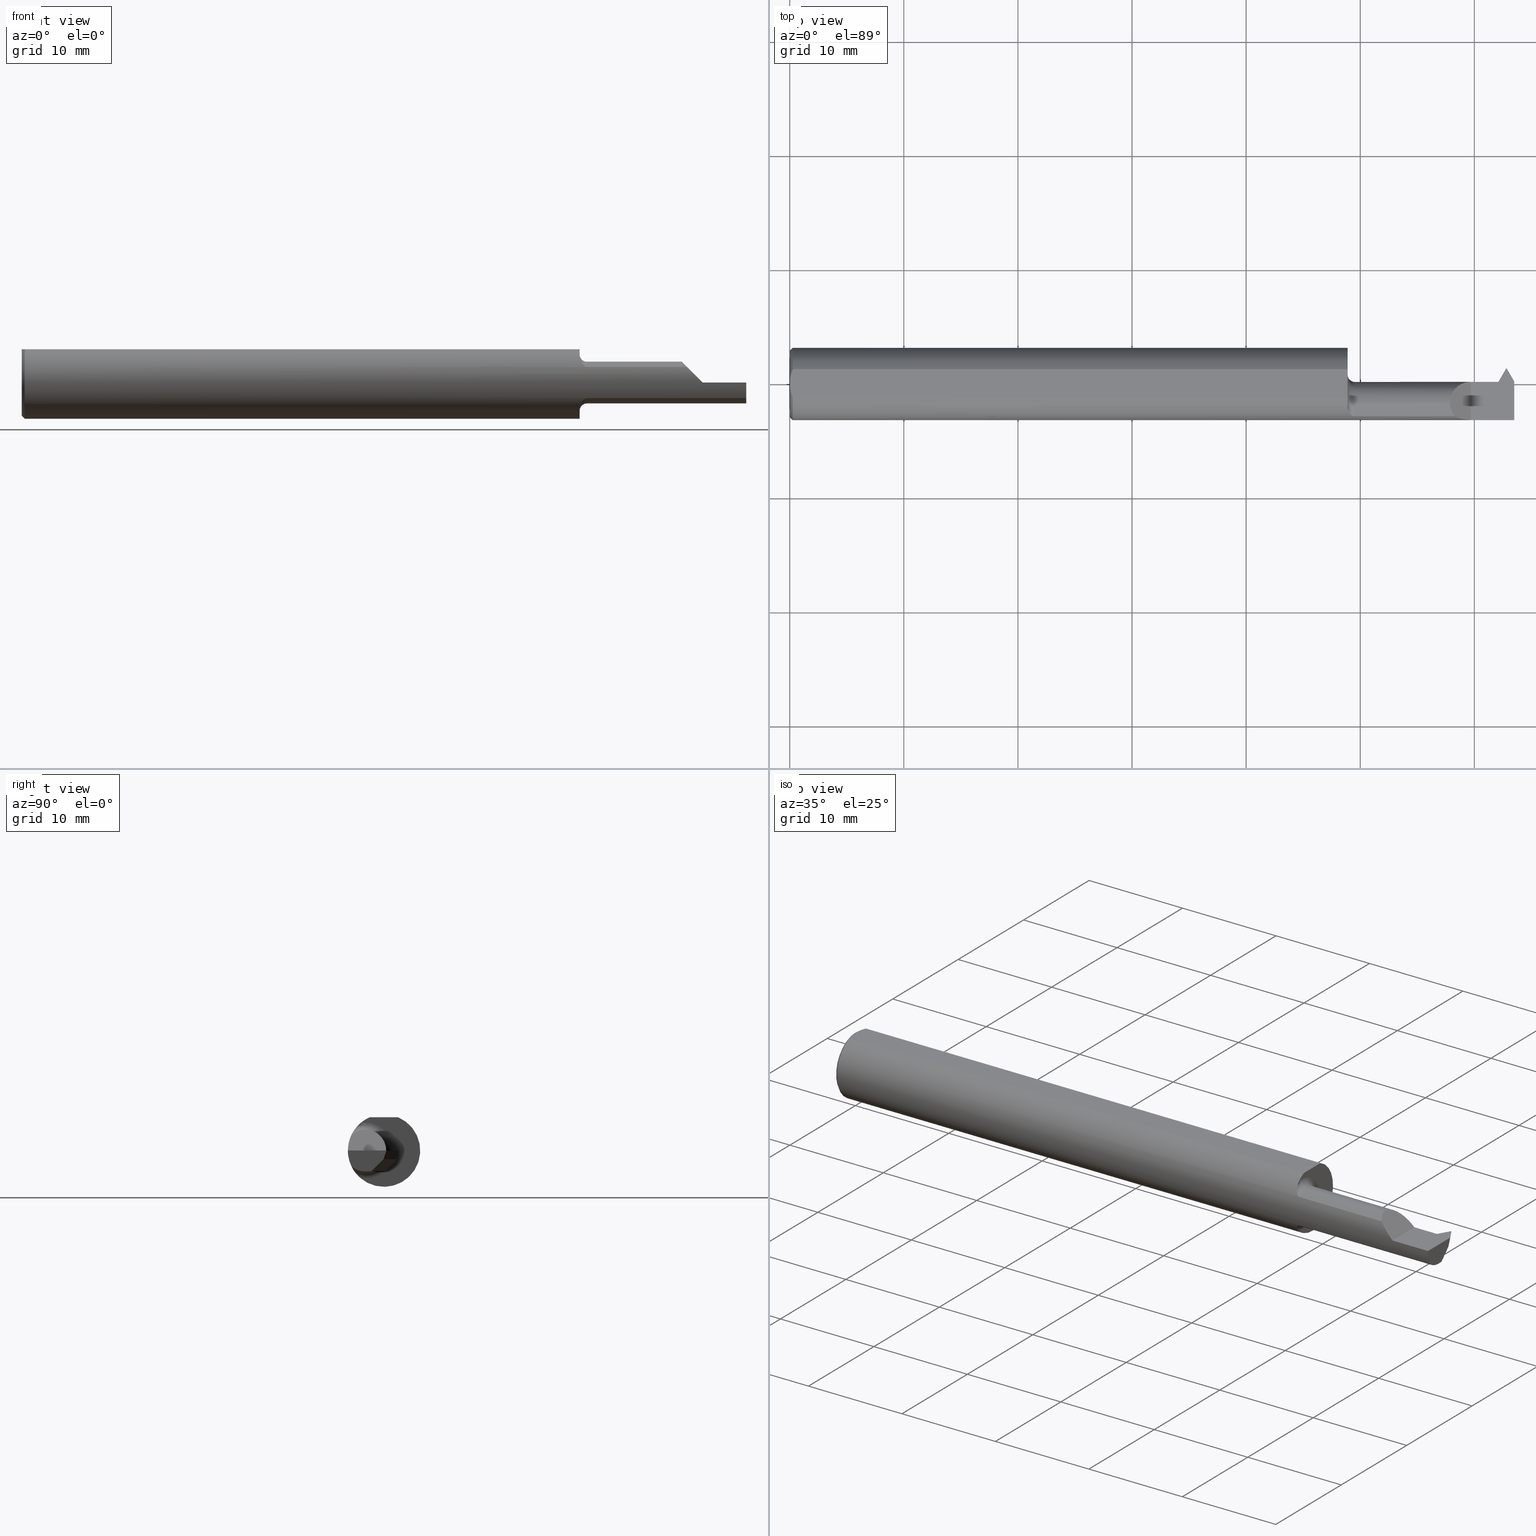
[diagram: canonical four-view strip — front | top / right | iso, engineering-drawing reading convention]
A machine part, canonical four-view strip (front | top / right | iso — engineering-drawing reading convention). The complete STEP part file that produces these views, byte-faithful:
ISO-10303-21;
HEADER;
FILE_DESCRIPTION (( 'STEP AP203' ),
    '1' );
FILE_NAME ('230223-TT180500.STEP',
    '2025-04-24T22:52:30',
    ( '' ),
    ( '' ),
    'SwSTEP 2.0',
    'SolidWorks 2024',
    '' );
FILE_SCHEMA (( 'CONFIG_CONTROL_DESIGN' ));
ENDSEC;

DATA;
#1 = CARTESIAN_POINT ( 'NONE',  ( 2.448245960510600838, -0.03242552803665108702, -0.06428571861539707222 ) ) ;
#2 = EDGE_CURVE ( 'NONE', #883, #71, #276, .T. ) ;
#3 = CARTESIAN_POINT ( 'NONE',  ( 1.925000000000000044, 0.05314999999999996116, 7.041719095097276442E-17 ) ) ;
#4 = CARTESIAN_POINT ( 'NONE',  ( 2.313030448582554577, -0.1207107374854203552, 0.03696955141744460993 ) ) ;
#5 = ORIENTED_EDGE ( 'NONE', *, *, #296, .F. ) ;
#6 = CARTESIAN_POINT ( 'NONE',  ( 2.500000000000000000, 0.000000000000000000, 0.000000000000000000 ) ) ;
#7 = DIRECTION ( 'NONE',  ( 1.000000000000000000, 0.000000000000000000, 0.000000000000000000 ) ) ;
#8 = VERTEX_POINT ( 'NONE', #560 ) ;
#9 = AXIS2_PLACEMENT_3D ( 'NONE', #254, #538, #811 ) ;
#10 = ORIENTED_EDGE ( 'NONE', *, *, #709, .T. ) ;
#11 = TOROIDAL_SURFACE ( 'NONE', #634, 0.09699999999999998901, 0.02499999999999993547 ) ;
#12 = DIRECTION ( 'NONE',  ( 0.9950119557120742364, 0.01732240274750070086, 0.09824022777399638029 ) ) ;
#13 = DIRECTION ( 'NONE',  ( 0.000000000000000000, 0.000000000000000000, 1.000000000000000000 ) ) ;
#14 = LINE ( 'NONE', #98, #632 ) ;
#15 = ORIENTED_EDGE ( 'NONE', *, *, #138, .F. ) ;
#16 = COORDINATED_UNIVERSAL_TIME_OFFSET ( 8, 0, .BEHIND. ) ;
#17 =( BOUNDED_CURVE ( )  B_SPLINE_CURVE ( 3, ( #490, #336, #409, #62 ),
 .UNSPECIFIED., .F., .T. ) 
 B_SPLINE_CURVE_WITH_KNOTS ( ( 4, 4 ),
 ( 5.557415925277291002, 6.283185307179586232 ),
 .UNSPECIFIED. ) 
 CURVE ( )  GEOMETRIC_REPRESENTATION_ITEM ( )  RATIONAL_B_SPLINE_CURVE ( ( 1.000000000000000000, 0.9565844858609652279, 0.9565844858609652279, 1.000000000000000000 ) ) 
 REPRESENTATION_ITEM ( '' )  );
#18 = CARTESIAN_POINT ( 'NONE',  ( 1.925000000000000044, 0.1248500000000000026, 0.1148499999999999521 ) ) ;
#19 = ORIENTED_EDGE ( 'NONE', *, *, #147, .F. ) ;
#20 = EDGE_CURVE ( 'NONE', #482, #740, #344, .T. ) ;
#21 = APPROVAL_DATE_TIME ( #430, #483 ) ;
#22 = CARTESIAN_POINT ( 'NONE',  ( 1.925000000000000044, 0.1248499999999999333, 0.000000000000000000 ) ) ;
#23 = APPROVAL_PERSON_ORGANIZATION ( #371, #569, #31 ) ;
#24 = LINE ( 'NONE', #28, #500 ) ;
#25 = VECTOR ( 'NONE', #164, 39.37007874015748143 ) ;
#26 = DATE_AND_TIME ( #655, #443 ) ;
#27 = CARTESIAN_POINT ( 'NONE',  ( 1.944775396606909901, -0.1121351437369266929, 0.05491640911844725137 ) ) ;
#28 = CARTESIAN_POINT ( 'NONE',  ( 2.448245960510600838, 0.001860190578746154363, -0.02999999999999964848 ) ) ;
#29 = EDGE_CURVE ( 'NONE', #411, #696, #167, .T. ) ;
#30 = VERTEX_POINT ( 'NONE', #571 ) ;
#31 = APPROVAL_ROLE ( '' ) ;
#32 = CARTESIAN_POINT ( 'NONE',  ( 1.934205702853136533, -0.1065695022460757119, 0.06518423682889426529 ) ) ;
#33 = EDGE_CURVE ( 'NONE', #263, #112, #49, .T. ) ;
#34 = DIRECTION ( 'NONE',  ( 1.000000000000000000, 0.000000000000000000, 0.000000000000000000 ) ) ;
#35 = ORIENTED_EDGE ( 'NONE', *, *, #57, .T. ) ;
#36 = CARTESIAN_POINT ( 'NONE',  ( 1.938831642198944216, -0.1097489668072911262, -0.05955949809225459524 ) ) ;
#37 = DIRECTION ( 'NONE',  ( -1.000000000000000000, -0.000000000000000000, -0.000000000000000000 ) ) ;
#38 = ORIENTED_EDGE ( 'NONE', *, *, #725, .F. ) ;
#39 = CARTESIAN_POINT ( 'NONE',  ( 2.448377569033441947, 0.0002070817503828659698, -0.03104149022359889085 ) ) ;
#40 = AXIS2_PLACEMENT_3D ( 'NONE', #523, #396, #604 ) ;
#41 = CARTESIAN_POINT ( 'NONE',  ( 2.500000000000000000, -0.1126372012336159106, -0.05385520771715490013 ) ) ;
#42 = ORIENTED_EDGE ( 'NONE', *, *, #378, .T. ) ;
#43 = FACE_OUTER_BOUND ( 'NONE', #800, .T. ) ;
#44 = ORIENTED_EDGE ( 'NONE', *, *, #622, .T. ) ;
#45 = ADVANCED_FACE ( 'NONE', ( #771 ), #150, .F. ) ;
#46 = CARTESIAN_POINT ( 'NONE',  ( 2.277999999999999137, -0.06485000000000003262, 0.07200000000000005007 ) ) ;
#47 = CARTESIAN_POINT ( 'NONE',  ( -8.474402044719765530E-17, 0.01683325733139112365, 0.1148499999999999521 ) ) ;
#48 = ORIENTED_EDGE ( 'NONE', *, *, #577, .T. ) ;
#49 =( BOUNDED_CURVE ( )  B_SPLINE_CURVE ( 3, ( #565, #905, #4, #555 ),
 .UNSPECIFIED., .F., .T. ) 
 B_SPLINE_CURVE_WITH_KNOTS ( ( 4, 4 ),
 ( 4.712388980384689674, 5.158387891136146486 ),
 .UNSPECIFIED. ) 
 CURVE ( )  GEOMETRIC_REPRESENTATION_ITEM ( )  RATIONAL_B_SPLINE_CURVE ( ( 1.000000000000000000, 0.9834923269034181459, 0.9834923269034181459, 1.000000000000000000 ) ) 
 REPRESENTATION_ITEM ( '' )  );
#50 = DIRECTION ( 'NONE',  ( -0.7745966692414855137, 0.4472135954999573171, -0.4472135954999549301 ) ) ;
#51 = VECTOR ( 'NONE', #135, 39.37007874015748143 ) ;
#52 = DIRECTION ( 'NONE',  ( -1.000000000000000000, -0.000000000000000000, -0.000000000000000000 ) ) ;
#53 = ORIENTED_EDGE ( 'NONE', *, *, #856, .F. ) ;
#54 = ADVANCED_FACE ( 'NONE', ( #423 ), #209, .T. ) ;
#55 = PLANE ( 'NONE',  #427 ) ;
#56 = DIRECTION ( 'NONE',  ( -1.000000000000000000, -0.000000000000000000, -0.000000000000000000 ) ) ;
#57 = EDGE_CURVE ( 'NONE', #740, #323, #14, .T. ) ;
#58 = ORIENTED_EDGE ( 'NONE', *, *, #417, .F. ) ;
#59 = CARTESIAN_POINT ( 'NONE',  ( 2.555874766629407713, -0.7663652004174963395, -0.9846439515520013508 ) ) ;
#60 = DIRECTION ( 'NONE',  ( 0.1710878697460358200, 0.1710878697460366804, 0.9702875252478136980 ) ) ;
#61 = VERTEX_POINT ( 'NONE', #251 ) ;
#62 = CARTESIAN_POINT ( 'NONE',  ( 2.277999999999999137, -0.06485000000000003262, 0.07200000000000005007 ) ) ;
#63 = ADVANCED_FACE ( 'NONE', ( #524 ), #581, .T. ) ;
#64 = CARTESIAN_POINT ( 'NONE',  ( 0.01000000000000014939, 0.000000000000000000, 0.000000000000000000 ) ) ;
#65 = AXIS2_PLACEMENT_3D ( 'NONE', #787, #37, #506 ) ;
#66 = DIRECTION ( 'NONE',  ( 0.000000000000000000, -1.000000000000000000, 0.000000000000000000 ) ) ;
#67 = EDGE_CURVE ( 'NONE', #78, #640, #136, .T. ) ;
#68 = DIRECTION ( 'NONE',  ( 0.000000000000000000, 0.000000000000000000, -1.000000000000000000 ) ) ;
#69 = CARTESIAN_POINT ( 'NONE',  ( 2.500000000000000000, -0.04402992713740878222, -0.07200000000000013334 ) ) ;
#70 = ORIENTED_EDGE ( 'NONE', *, *, #763, .T. ) ;
#71 = VERTEX_POINT ( 'NONE', #232 ) ;
#72 = CARTESIAN_POINT ( 'NONE',  ( 0.01000000000000014939, 0.000000000000000000, -0.1248500000000000026 ) ) ;
#73 = CARTESIAN_POINT ( 'NONE',  ( 1.925000000000000044, -0.08006202775636085678, 0.09579976102026406537 ) ) ;
#74 = ORIENTED_EDGE ( 'NONE', *, *, #324, .F. ) ;
#75 = DIRECTION ( 'NONE',  ( 0.000000000000000000, 0.000000000000000000, -1.000000000000000000 ) ) ;
#76 = DIRECTION ( 'NONE',  ( 0.000000000000000000, 0.000000000000000000, 1.000000000000000000 ) ) ;
#77 = DIRECTION ( 'NONE',  ( -1.000000000000000000, -0.000000000000000000, -0.000000000000000000 ) ) ;
#78 = VERTEX_POINT ( 'NONE', #41 ) ;
#79 = AXIS2_PLACEMENT_3D ( 'NONE', #187, #809, #182 ) ;
#80 = CARTESIAN_POINT ( 'NONE',  ( 0.000000000000000000, 0.000000000000000000, 0.000000000000000000 ) ) ;
#81 = CARTESIAN_POINT ( 'NONE',  ( 2.448707345675358749, -0.001433052293470402257, -0.03409238541943496875 ) ) ;
#82 = ADVANCED_FACE ( 'NONE', ( #711 ), #593, .F. ) ;
#83 = EDGE_LOOP ( 'NONE', ( #42, #48, #850, #35 ) ) ;
#84 = APPROVAL_DATE_TIME ( #88, #569 ) ;
#85 = CARTESIAN_POINT ( 'NONE',  ( 1.925000000000000044, -0.08006202775636085678, 0.09579976102026406537 ) ) ;
#86 = DIRECTION ( 'NONE',  ( 0.7745966692415058308, 0.4472135954999396090, -0.4472135954999372220 ) ) ;
#87 = ORIENTED_EDGE ( 'NONE', *, *, #378, .F. ) ;
#88 = DATE_AND_TIME ( #568, #179 ) ;
#89 = CARTESIAN_POINT ( 'NONE',  ( 2.474250000000000060, 0.05314999999999996116, 0.000000000000000000 ) ) ;
#90 = EDGE_CURVE ( 'NONE', #428, #550, #24, .T. ) ;
#91 = CARTESIAN_POINT ( 'NONE',  ( 2.197229416990599926, -0.1126372012336159523, 0.05385520771715492788 ) ) ;
#92 = ORIENTED_EDGE ( 'NONE', *, *, #567, .T. ) ;
#93 = VECTOR ( 'NONE', #644, 39.37007874015748143 ) ;
#94 = EDGE_CURVE ( 'NONE', #594, #696, #799, .T. ) ;
#95 = APPLICATION_PROTOCOL_DEFINITION ( 'international standard', 'config_control_design', 1994, #627 ) ;
#96 = ADVANCED_BREP_SHAPE_REPRESENTATION ( '230223-TT180500', ( #793, #603 ), #488 ) ;
#97 = CARTESIAN_POINT ( 'NONE',  ( 2.448040809951406160, 0.001623174844357845809, -0.02788036992740975870 ) ) ;
#98 = CARTESIAN_POINT ( 'NONE',  ( 2.500000000000000000, -0.002029927137408522441, -0.02999999999999964848 ) ) ;
#99 = VERTEX_POINT ( 'NONE', #720 ) ;
#100 = CARTESIAN_POINT ( 'NONE',  ( 1.925000000000000044, -0.06485000000000003262, 0.000000000000000000 ) ) ;
#101 = CARTESIAN_POINT ( 'NONE',  ( 0.004414493321357296045, -0.03313351293251454166, 0.1148499999999999660 ) ) ;
#102 = EDGE_LOOP ( 'NONE', ( #845, #319, #307, #92 ) ) ;
#103 = DIRECTION ( 'NONE',  ( 2.679345334667594223E-15, 0.7071067811865432429, 0.7071067811865516806 ) ) ;
#104 = CARTESIAN_POINT ( 'NONE',  ( 0.000000000000000000, 0.000000000000000000, 0.1148499999999999521 ) ) ;
#105 = ORIENTED_EDGE ( 'NONE', *, *, #439, .T. ) ;
#106 = VECTOR ( 'NONE', #114, 39.37007874015748143 ) ;
#107 = PLANE ( 'NONE',  #243 ) ;
#108 = VECTOR ( 'NONE', #223, 39.37007874015748854 ) ;
#109 = DIRECTION ( 'NONE',  ( 0.000000000000000000, 0.000000000000000000, 1.000000000000000000 ) ) ;
#110 = AXIS2_PLACEMENT_3D ( 'NONE', #540, #193, #821 ) ;
#111 = EDGE_CURVE ( 'NONE', #594, #512, #805, .T. ) ;
#112 = VERTEX_POINT ( 'NONE', #649 ) ;
#113 = CARTESIAN_POINT ( 'NONE',  ( 2.471750000000000114, 0.05314999999999996116, 0.000000000000000000 ) ) ;
#114 = DIRECTION ( 'NONE',  ( 0.4999999999999984457, 0.8660254037844394848, 0.000000000000000000 ) ) ;
#115 = VERTEX_POINT ( 'NONE', #729 ) ;
#116 = PLANE ( 'NONE',  #665 ) ;
#117 = CARTESIAN_POINT ( 'NONE',  ( 2.453554108141144052, -0.06485000000000003262, -0.07200000000000009170 ) ) ;
#118 = ADVANCED_FACE ( 'NONE', ( #236 ), #301, .F. ) ;
#119 = ORIENTED_EDGE ( 'NONE', *, *, #481, .F. ) ;
#120 = EDGE_CURVE ( 'NONE', #99, #30, #751, .T. ) ;
#121 = DIRECTION ( 'NONE',  ( -1.000000000000000000, -0.000000000000000000, -0.000000000000000000 ) ) ;
#122 = AXIS2_PLACEMENT_3D ( 'NONE', #693, #146, #853 ) ;
#123 = CIRCLE ( 'NONE', #617, 0.02499999999999993894 ) ;
#124 = CARTESIAN_POINT ( 'NONE',  ( 2.451025827834819815, -0.01798175266187929111, -0.05465681468447253916 ) ) ;
#125 = ORIENTED_EDGE ( 'NONE', *, *, #29, .T. ) ;
#126 = DIRECTION ( 'NONE',  ( 0.000000000000000000, 0.3325792450067060479, 0.9430753128943463182 ) ) ;
#127 = CARTESIAN_POINT ( 'NONE',  ( 2.453251568588369125, -0.04747189856251215340, -0.07200000000000005007 ) ) ;
#128 = VERTEX_POINT ( 'NONE', #517 ) ;
#129 = EDGE_CURVE ( 'NONE', #263, #467, #791, .T. ) ;
#130 = DIRECTION ( 'NONE',  ( 1.000000000000000000, 0.000000000000000000, 0.000000000000000000 ) ) ;
#131 = CARTESIAN_POINT ( 'NONE',  ( 2.448245960510600838, -0.0005642813846027860611, -0.03242447196334860560 ) ) ;
#132 = ORIENTED_EDGE ( 'NONE', *, *, #567, .F. ) ;
#133 = APPROVAL_PERSON_ORGANIZATION ( #794, #667, #820 ) ;
#134 = DIRECTION ( 'NONE',  ( -0.000000000000000000, 0.000000000000000000, 1.000000000000000000 ) ) ;
#135 = DIRECTION ( 'NONE',  ( -0.4999999999999737432, 0.8660254037844538066, 0.000000000000000000 ) ) ;
#136 = CIRCLE ( 'NONE', #356, 0.07200000000000009170 ) ;
#137 = EDGE_LOOP ( 'NONE', ( #390, #658, #712, #819, #582, #492 ) ) ;
#138 = EDGE_CURVE ( 'NONE', #865, #112, #366, .T. ) ;
#139 = CIRCLE ( 'NONE', #781, 0.1248500000000000026 ) ;
#140 = DIRECTION ( 'NONE',  ( -1.000000000000000000, -0.000000000000000000, -0.000000000000000000 ) ) ;
#141 = DIRECTION ( 'NONE',  ( 1.000000000000000000, 0.000000000000000000, 0.000000000000000000 ) ) ;
#142 = ORIENTED_EDGE ( 'NONE', *, *, #129, .T. ) ;
#143 = ORIENTED_EDGE ( 'NONE', *, *, #871, .F. ) ;
#144 = CARTESIAN_POINT ( 'NONE',  ( 2.449731527510602636, -0.02723388756618700182, -0.06166715566698454526 ) ) ;
#145 = DIRECTION ( 'NONE',  ( 1.000000000000000000, 0.000000000000000000, 0.000000000000000000 ) ) ;
#146 = DIRECTION ( 'NONE',  ( 0.8528685319524464958, -0.4924038765060983480, 0.1736481776669306920 ) ) ;
#147 = EDGE_CURVE ( 'NONE', #403, #512, #860, .T. ) ;
#148 = LINE ( 'NONE', #59, #184 ) ;
#149 = PLANE ( 'NONE',  #195 ) ;
#150 = PLANE ( 'NONE',  #122 ) ;
#151 = CIRCLE ( 'NONE', #530, 0.07200000000000005007 ) ;
#152 = AXIS2_PLACEMENT_3D ( 'NONE', #692, #829, #13 ) ;
#153 = LINE ( 'NONE', #652, #779 ) ;
#154 = EDGE_LOOP ( 'NONE', ( #547, #735, #185, #220 ) ) ;
#155 = VERTEX_POINT ( 'NONE', #159 ) ;
#156 = APPROVAL_STATUS ( 'not_yet_approved' ) ;
#157 = EDGE_CURVE ( 'NONE', #394, #428, #541, .T. ) ;
#158 = CARTESIAN_POINT ( 'NONE',  ( 1.925000000000000044, 0.04895916665957469188, 0.1148499999999999521 ) ) ;
#159 = CARTESIAN_POINT ( 'NONE',  ( 2.277999999999999137, -0.06485000000000003262, 0.07200000000000005007 ) ) ;
#160 = ADVANCED_FACE ( 'NONE', ( #653 ), #657, .T. ) ;
#161 = VERTEX_POINT ( 'NONE', #382 ) ;
#162 = CALENDAR_DATE ( 2025, 24, 4 ) ;
#163 = CARTESIAN_POINT ( 'NONE',  ( 1.949999999999999956, -0.1126372012336159384, -0.05385520771715492788 ) ) ;
#164 = DIRECTION ( 'NONE',  ( -0.000000000000000000, 1.000000000000000000, -0.000000000000000000 ) ) ;
#165 = ORIENTED_EDGE ( 'NONE', *, *, #386, .T. ) ;
#166 = VECTOR ( 'NONE', #60, 39.37007874015748143 ) ;
#167 = CIRCLE ( 'NONE', #328, 0.07200000000000005007 ) ;
#168 = APPROVAL_STATUS ( 'not_yet_approved' ) ;
#169 = CARTESIAN_POINT ( 'NONE',  ( 1.944802286744101494, -0.1121433209818641918, -0.05490002475017542044 ) ) ;
#170 = AXIS2_PLACEMENT_3D ( 'NONE', #748, #628, #68 ) ;
#171 = CARTESIAN_POINT ( 'NONE',  ( -7.933430635897561254E-17, -0.008414813278457880172, 0.1148499999999999660 ) ) ;
#172 = ORIENTED_EDGE ( 'NONE', *, *, #886, .T. ) ;
#173 = PERSON_AND_ORGANIZATION ( #826, #212 ) ;
#174 = DIRECTION ( 'NONE',  ( 1.000000000000000000, 4.926001597688720854E-15, -0.000000000000000000 ) ) ;
#175 = DIRECTION ( 'NONE',  ( 1.000000000000000000, 0.000000000000000000, -0.000000000000000000 ) ) ;
#176 = EDGE_LOOP ( 'NONE', ( #292, #172 ) ) ;
#177 = FACE_OUTER_BOUND ( 'NONE', #154, .T. ) ;
#178 = ADVANCED_FACE ( 'NONE', ( #661 ), #610, .F. ) ;
#179 = LOCAL_TIME ( 15, 52, 30.00000000000000000, #16 ) ;
#180 = CARTESIAN_POINT ( 'NONE',  ( 1.925000000000000044, -0.06485000000000003262, 0.000000000000000000 ) ) ;
#181 = VERTEX_POINT ( 'NONE', #321 ) ;
#182 = DIRECTION ( 'NONE',  ( 0.000000000000000000, 0.000000000000000000, 1.000000000000000000 ) ) ;
#183 = LINE ( 'NONE', #458, #106 ) ;
#184 = VECTOR ( 'NONE', #898, 39.37007874015748143 ) ;
#185 = ORIENTED_EDGE ( 'NONE', *, *, #536, .T. ) ;
#186 = EDGE_CURVE ( 'NONE', #594, #115, #552, .T. ) ;
#187 = CARTESIAN_POINT ( 'NONE',  ( 1.925000000000000044, -0.06485000000000003262, 0.000000000000000000 ) ) ;
#188 = CARTESIAN_POINT ( 'NONE',  ( 1.925000000000000044, -0.06485000000000003262, 0.000000000000000000 ) ) ;
#189 = ORIENTED_EDGE ( 'NONE', *, *, #450, .F. ) ;
#190 = FACE_OUTER_BOUND ( 'NONE', #877, .T. ) ;
#191 = DIRECTION ( 'NONE',  ( -1.000000000000000000, -0.000000000000000000, -0.000000000000000000 ) ) ;
#192 = ORIENTED_EDGE ( 'NONE', *, *, #536, .F. ) ;
#193 = DIRECTION ( 'NONE',  ( -0.9848077530122080203, 0.000000000000000000, 0.1736481776669307198 ) ) ;
#194 = VECTOR ( 'NONE', #415, 39.37007874015748143 ) ;
#195 = AXIS2_PLACEMENT_3D ( 'NONE', #361, #381, #299 ) ;
#196 = DIRECTION ( 'NONE',  ( 0.000000000000000000, -0.9455185755993191776, 0.3255681544571500385 ) ) ;
#197 = VERTEX_POINT ( 'NONE', #453 ) ;
#198 = LINE ( 'NONE', #274, #578 ) ;
#199 = LINE ( 'NONE', #3, #574 ) ;
#200 = ORIENTED_EDGE ( 'NONE', *, *, #304, .F. ) ;
#201 = DIRECTION ( 'NONE',  ( 0.000000000000000000, 0.000000000000000000, -1.000000000000000000 ) ) ;
#202 = DIRECTION ( 'NONE',  ( -0.004545268223872399663, 0.3255647914081228333, 0.9455088085957520372 ) ) ;
#203 = ADVANCED_FACE ( 'NONE', ( #542 ), #739, .F. ) ;
#204 = ORIENTED_EDGE ( 'NONE', *, *, #466, .T. ) ;
#205 = ORIENTED_EDGE ( 'NONE', *, *, #186, .F. ) ;
#206 = CARTESIAN_POINT ( 'NONE',  ( 0.000000000000000000, 0.000000000000000000, 0.000000000000000000 ) ) ;
#207 = DIRECTION ( 'NONE',  ( -1.000000000000000000, 0.000000000000000000, 1.224646799147352961E-16 ) ) ;
#208 = VECTOR ( 'NONE', #614, 39.37007874015748143 ) ;
#209 = CYLINDRICAL_SURFACE ( 'NONE', #840, 0.1248500000000000026 ) ;
#210 = DIMENSIONAL_EXPONENTS ( 1.000000000000000000, 0.000000000000000000, 0.000000000000000000, 0.000000000000000000, 0.000000000000000000, 0.000000000000000000, 0.000000000000000000 ) ;
#211 = ORIENTED_EDGE ( 'NONE', *, *, #33, .T. ) ;
#212 = ORGANIZATION ( 'UNSPECIFIED', 'UNSPECIFIED', '' ) ;
#213 = CARTESIAN_POINT ( 'NONE',  ( 2.450662676990365441, -0.02239577395952108835, -0.05844184026870891113 ) ) ;
#214 = EDGE_CURVE ( 'NONE', #640, #594, #733, .T. ) ;
#215 = CARTESIAN_POINT ( 'NONE',  ( 2.471894216579980430, 0.04282017160131498107, -0.02999999999999524575 ) ) ;
#216 = CARTESIAN_POINT ( 'NONE',  ( 2.473000000000000753, 0.04473544466695351246, -0.02999999999999964848 ) ) ;
#217 = EDGE_CURVE ( 'NONE', #625, #61, #341, .T. ) ;
#218 = FACE_OUTER_BOUND ( 'NONE', #507, .T. ) ;
#219 = CARTESIAN_POINT ( 'NONE',  ( 0.000000000000000000, -0.04895916665957469188, 0.1148499999999999521 ) ) ;
#220 = ORIENTED_EDGE ( 'NONE', *, *, #286, .T. ) ;
#221 = SECURITY_CLASSIFICATION ( '', '', #713 ) ;
#222 =( CONVERSION_BASED_UNIT ( 'INCH', #851 ) LENGTH_UNIT ( ) NAMED_UNIT ( #210 ) );
#223 = DIRECTION ( 'NONE',  ( 0.4999999999999949485, -0.8660254037844414832, 0.000000000000000000 ) ) ;
#224 = ORIENTED_EDGE ( 'NONE', *, *, #214, .T. ) ;
#225 = VECTOR ( 'NONE', #295, 39.37007874015748854 ) ;
#226 = ADVANCED_FACE ( 'NONE', ( #546 ), #882, .T. ) ;
#227 = ORIENTED_EDGE ( 'NONE', *, *, #470, .F. ) ;
#228 =( LENGTH_UNIT ( ) NAMED_UNIT ( * ) SI_UNIT ( $, .METRE. ) );
#229 = AXIS2_PLACEMENT_3D ( 'NONE', #421, #685, #903 ) ;
#230 = CARTESIAN_POINT ( 'NONE',  ( 1.931963689329176281, -0.1039823658361042902, 0.06927888988223099287 ) ) ;
#231 = EDGE_CURVE ( 'NONE', #370, #625, #588, .T. ) ;
#232 = CARTESIAN_POINT ( 'NONE',  ( 2.500000000000000000, -0.1248500000000000026, 0.000000000000000000 ) ) ;
#233 = EDGE_LOOP ( 'NONE', ( #143, #352, #142, #641 ) ) ;
#234 = COORDINATED_UNIVERSAL_TIME_OFFSET ( 8, 0, .BEHIND. ) ;
#235 = CARTESIAN_POINT ( 'NONE',  ( 1.927131788312331562, -0.09490829401950524880, 0.08128070330457727588 ) ) ;
#236 = FACE_OUTER_BOUND ( 'NONE', #501, .T. ) ;
#237 = ORIENTED_EDGE ( 'NONE', *, *, #414, .F. ) ;
#238 = PERSON_AND_ORGANIZATION_ROLE ( 'classification_officer' ) ;
#239 = CARTESIAN_POINT ( 'NONE',  ( 1.938827327854349969, -0.1097461625965755888, 0.05956452430189914521 ) ) ;
#240 = CARTESIAN_POINT ( 'NONE',  ( 0.0009329797661891488150, -0.01671851415607274530, 0.1148499999999999244 ) ) ;
#241 = ORIENTED_EDGE ( 'NONE', *, *, #699, .F. ) ;
#242 = AXIS2_PLACEMENT_3D ( 'NONE', #683, #330, #397 ) ;
#243 = AXIS2_PLACEMENT_3D ( 'NONE', #249, #814, #526 ) ;
#244 = LINE ( 'NONE', #447, #285 ) ;
#245 = DIRECTION ( 'NONE',  ( -0.01740660320038078801, 0.9998484936054184979, 0.000000000000000000 ) ) ;
#246 = ORIENTED_EDGE ( 'NONE', *, *, #709, .F. ) ;
#247 = EDGE_CURVE ( 'NONE', #255, #128, #676, .T. ) ;
#248 = CALENDAR_DATE ( 2025, 24, 4 ) ;
#249 = CARTESIAN_POINT ( 'NONE',  ( 2.350000000000000089, -0.2500000000000000555, 1.836970198721029441E-17 ) ) ;
#250 = CC_DESIGN_PERSON_AND_ORGANIZATION_ASSIGNMENT ( #866, #238, ( #221 ) ) ;
#251 = CARTESIAN_POINT ( 'NONE',  ( 1.925000000000000044, -0.08006202775636085678, -0.09579976102026406537 ) ) ;
#252 = EDGE_LOOP ( 'NONE', ( #496, #463 ) ) ;
#253 = CARTESIAN_POINT ( 'NONE',  ( 2.453554108141144052, -0.06485000000000003262, -0.07200000000000009170 ) ) ;
#254 = CARTESIAN_POINT ( 'NONE',  ( 1.949999999999999956, -0.06485000000000003262, 0.000000000000000000 ) ) ;
#255 = VERTEX_POINT ( 'NONE', #605 ) ;
#256 = ADVANCED_FACE ( 'NONE', ( #389 ), #873, .F. ) ;
#257 = AXIS2_PLACEMENT_3D ( 'NONE', #686, #291, #207 ) ;
#258 = CARTESIAN_POINT ( 'NONE',  ( 2.500000000000000000, -0.06485000000000015752, -0.07200000000000013334 ) ) ;
#259 = EDGE_CURVE ( 'NONE', #696, #849, #151, .T. ) ;
#260 = VERTEX_POINT ( 'NONE', #534 ) ;
#261 = FACE_OUTER_BOUND ( 'NONE', #631, .T. ) ;
#262 = DIRECTION ( 'NONE',  ( 0.000000000000000000, 0.000000000000000000, 1.000000000000000000 ) ) ;
#263 = VERTEX_POINT ( 'NONE', #334 ) ;
#264 = PLANE ( 'NONE',  #110 ) ;
#265 = DIRECTION ( 'NONE',  ( -1.000000000000000000, -0.000000000000000000, -0.000000000000000000 ) ) ;
#266 = ORIENTED_EDGE ( 'NONE', *, *, #407, .F. ) ;
#267 = DIRECTION ( 'NONE',  ( 0.000000000000000000, -0.1736481776669307198, -0.9848077530122080203 ) ) ;
#268 = AXIS2_PLACEMENT_3D ( 'NONE', #589, #448, #175 ) ;
#269 = VECTOR ( 'NONE', #7, 39.37007874015748143 ) ;
#270 = LINE ( 'NONE', #669, #719 ) ;
#271 = ORIENTED_EDGE ( 'NONE', *, *, #498, .F. ) ;
#272 = VECTOR ( 'NONE', #762, 39.37007874015748143 ) ;
#273 = EDGE_CURVE ( 'NONE', #359, #255, #270, .T. ) ;
#274 = CARTESIAN_POINT ( 'NONE',  ( -3.937007874019685528E-05, 0.04282017160131022099, -0.03000000000000000583 ) ) ;
#275 = DIRECTION ( 'NONE',  ( 0.000000000000000000, 1.000000000000000000, 0.000000000000000000 ) ) ;
#276 = LINE ( 'NONE', #279, #900 ) ;
#277 = CARTESIAN_POINT ( 'NONE',  ( 2.451025827834819815, -0.01798175266187929111, -0.05465681468447253916 ) ) ;
#278 = CARTESIAN_POINT ( 'NONE',  ( 0.000000000000000000, 0.000000000000000000, -0.1148500000000000076 ) ) ;
#279 = CARTESIAN_POINT ( 'NONE',  ( 2.500000000000000000, 0.000000000000000000, 0.000000000000000000 ) ) ;
#280 = ORIENTED_EDGE ( 'NONE', *, *, #314, .F. ) ;
#281 = ADVANCED_FACE ( 'NONE', ( #43 ), #597, .F. ) ;
#282 = CARTESIAN_POINT ( 'NONE',  ( 1.925000000000000044, -0.06485000000000003262, 0.07200000000000005007 ) ) ;
#283 = DIRECTION ( 'NONE',  ( 0.000000000000000000, 0.000000000000000000, -1.000000000000000000 ) ) ;
#284 = VECTOR ( 'NONE', #584, 39.37007874015748143 ) ;
#285 = VECTOR ( 'NONE', #103, 39.37007874015748854 ) ;
#286 = EDGE_CURVE ( 'NONE', #865, #411, #468, .T. ) ;
#287 = EDGE_LOOP ( 'NONE', ( #280, #606, #788, #585 ) ) ;
#288 = ORIENTED_EDGE ( 'NONE', *, *, #754, .F. ) ;
#289 = CIRCLE ( 'NONE', #619, 0.1148500000000000076 ) ;
#290 = FACE_OUTER_BOUND ( 'NONE', #176, .T. ) ;
#291 = DIRECTION ( 'NONE',  ( -1.224646799147352961E-16, 0.000000000000000000, -1.000000000000000000 ) ) ;
#292 = ORIENTED_EDGE ( 'NONE', *, *, #893, .T. ) ;
#293 = EDGE_LOOP ( 'NONE', ( #375, #611, #812, #792, #744, #664 ) ) ;
#294 = PERSON_AND_ORGANIZATION ( #826, #212 ) ;
#295 = DIRECTION ( 'NONE',  ( -0.09975574163943304318, 0.1727820128662099497, 0.9798954883250905468 ) ) ;
#296 = EDGE_CURVE ( 'NONE', #161, #449, #183, .T. ) ;
#297 = ORIENTED_EDGE ( 'NONE', *, *, #94, .T. ) ;
#298 = PERSON_AND_ORGANIZATION_ROLE ( 'creator' ) ;
#299 = DIRECTION ( 'NONE',  ( 0.4999999999999949485, -0.8660254037844414832, 0.000000000000000000 ) ) ;
#300 = CARTESIAN_POINT ( 'NONE',  ( 2.486599352491475567, 0.02629021413222649983, -0.07200000000000013334 ) ) ;
#301 = TOROIDAL_SURFACE ( 'NONE', #65, 0.09699999999999998901, 0.02499999999999993547 ) ;
#302 = ORIENTED_EDGE ( 'NONE', *, *, #322, .T. ) ;
#303 = VECTOR ( 'NONE', #317, 39.37007874015748854 ) ;
#304 = EDGE_CURVE ( 'NONE', #30, #181, #858, .T. ) ;
#305 = DIRECTION ( 'NONE',  ( 0.000000000000000000, 0.000000000000000000, -1.000000000000000000 ) ) ;
#306 = CARTESIAN_POINT ( 'NONE',  ( -3.937007874019685528E-05, 0.04282017160131022099, -0.03000000000000000583 ) ) ;
#307 = ORIENTED_EDGE ( 'NONE', *, *, #259, .T. ) ;
#308 = APPLICATION_PROTOCOL_DEFINITION ( 'international standard', 'config_control_design', 1994, #437 ) ;
#309 = CARTESIAN_POINT ( 'NONE',  ( 1.947311625325188977, -0.1126372012336159800, -0.05385520771715495564 ) ) ;
#310 = DIRECTION ( 'NONE',  ( 0.000000000000000000, -0.7071067811865517916, 0.7071067811865433539 ) ) ;
#311 = ORIENTED_EDGE ( 'NONE', *, *, #414, .T. ) ;
#312 = EDGE_CURVE ( 'NONE', #78, #849, #393, .T. ) ;
#313 = CARTESIAN_POINT ( 'NONE',  ( 2.473000000000000753, 0.04473544466695351246, -0.02999999999999964848 ) ) ;
#314 = EDGE_CURVE ( 'NONE', #454, #901, #554, .T. ) ;
#315 = ORIENTED_EDGE ( 'NONE', *, *, #827, .F. ) ;
#316 = VECTOR ( 'NONE', #245, 39.37007874015748143 ) ;
#317 = DIRECTION ( 'NONE',  ( 0.4999999999999941158, 0.8660254037844419273, -0.000000000000000000 ) ) ;
#318 = DIRECTION ( 'NONE',  ( 0.000000000000000000, -0.7071067811865456854, -0.7071067811865493491 ) ) ;
#319 = ORIENTED_EDGE ( 'NONE', *, *, #404, .T. ) ;
#320 = DIRECTION ( 'NONE',  ( 0.000000000000000000, 0.000000000000000000, 1.000000000000000000 ) ) ;
#321 = CARTESIAN_POINT ( 'NONE',  ( 0.01000000000000014939, 0.04895916665957469188, 0.1148499999999999521 ) ) ;
#322 = EDGE_CURVE ( 'NONE', #449, #8, #419, .T. ) ;
#323 = VERTEX_POINT ( 'NONE', #69 ) ;
#324 = EDGE_CURVE ( 'NONE', #503, #482, #480, .T. ) ;
#325 = CARTESIAN_POINT ( 'NONE',  ( 0.000000000000000000, 0.04895916665957469188, 0.1148499999999999521 ) ) ;
#326 = CARTESIAN_POINT ( 'NONE',  ( 0.01000000000000014939, 0.04895916665957469188, 0.1148499999999999521 ) ) ;
#327 = ORIENTED_EDGE ( 'NONE', *, *, #595, .F. ) ;
#328 = AXIS2_PLACEMENT_3D ( 'NONE', #416, #348, #621 ) ;
#329 = CARTESIAN_POINT ( 'NONE',  ( 2.440511904668818843, 0.005687813634591465210, -0.01671286663300396852 ) ) ;
#330 = DIRECTION ( 'NONE',  ( -1.000000000000000000, -0.000000000000000000, -0.000000000000000000 ) ) ;
#331 = LOCAL_TIME ( 15, 52, 30.00000000000000000, #234 ) ;
#332 = ORIENTED_EDGE ( 'NONE', *, *, #314, .T. ) ;
#333 = DIRECTION ( 'NONE',  ( 1.000000000000000000, 0.000000000000000000, 0.000000000000000000 ) ) ;
#334 = CARTESIAN_POINT ( 'NONE',  ( 2.350000000000000089, -0.1248500000000000165, 1.836970198721029441E-17 ) ) ;
#335 = ORIENTED_EDGE ( 'NONE', *, *, #886, .F. ) ;
#336 = CARTESIAN_POINT ( 'NONE',  ( 2.284322770422977822, -0.09931402208806684728, 0.06567722957702165631 ) ) ;
#337 = DIRECTION ( 'NONE',  ( 0.000000000000000000, 0.000000000000000000, 1.000000000000000000 ) ) ;
#338 = CC_DESIGN_APPROVAL ( #569, ( #613 ) ) ;
#339 = ORIENTED_EDGE ( 'NONE', *, *, #672, .F. ) ;
#340 = ADVANCED_FACE ( 'NONE', ( #426 ), #485, .T. ) ;
#341 = CIRCLE ( 'NONE', #413, 0.09699999999999998901 ) ;
#342 = VECTOR ( 'NONE', #121, 39.37007874015748143 ) ;
#343 = CARTESIAN_POINT ( 'NONE',  ( 2.471894216579979542, 0.0008201716013105871160, -0.07200000000000013334 ) ) ;
#344 = LINE ( 'NONE', #216, #516 ) ;
#345 = AXIS2_PLACEMENT_3D ( 'NONE', #418, #694, #201 ) ;
#346 = DIRECTION ( 'NONE',  ( -1.000000000000000000, 0.000000000000000000, -0.000000000000000000 ) ) ;
#347 = CARTESIAN_POINT ( 'NONE',  ( 0.000000000000000000, 0.000000000000000000, 0.000000000000000000 ) ) ;
#348 = DIRECTION ( 'NONE',  ( -1.000000000000000000, -0.000000000000000000, -0.000000000000000000 ) ) ;
#349 = ADVANCED_FACE ( 'NONE', ( #700 ), #491, .F. ) ;
#350 = FACE_OUTER_BOUND ( 'NONE', #435, .T. ) ;
#351 = CARTESIAN_POINT ( 'NONE',  ( 2.471894216579980430, 0.04282017160131065814, -0.02999999999999964848 ) ) ;
#352 = ORIENTED_EDGE ( 'NONE', *, *, #33, .F. ) ;
#353 = ORIENTED_EDGE ( 'NONE', *, *, #880, .T. ) ;
#354 = PLANE ( 'NONE',  #736 ) ;
#355 = LINE ( 'NONE', #476, #225 ) ;
#356 = AXIS2_PLACEMENT_3D ( 'NONE', #440, #34, #445 ) ;
#357 = AXIS2_PLACEMENT_3D ( 'NONE', #22, #780, #305 ) ;
#358 = ORIENTED_EDGE ( 'NONE', *, *, #374, .T. ) ;
#359 = VERTEX_POINT ( 'NONE', #758 ) ;
#360 = PERSON_AND_ORGANIZATION_ROLE ( 'creator' ) ;
#361 = CARTESIAN_POINT ( 'NONE',  ( 2.474250000000000060, 0.05314999999999996116, 0.000000000000000000 ) ) ;
#362 = EDGE_LOOP ( 'NONE', ( #408, #398, #543, #650 ) ) ;
#363 = ORIENTED_EDGE ( 'NONE', *, *, #807, .F. ) ;
#364 = PERSON_AND_ORGANIZATION ( #826, #212 ) ;
#365 = CARTESIAN_POINT ( 'NONE',  ( 1.924999999999999600, -0.08410689932160073101, 0.09241937033788394373 ) ) ;
#366 = LINE ( 'NONE', #91, #93 ) ;
#367 = CC_DESIGN_SECURITY_CLASSIFICATION ( #221, ( #613 ) ) ;
#368 = CARTESIAN_POINT ( 'NONE',  ( 2.350000000000000089, 0.007150000000000000973, 7.041719095097276442E-17 ) ) ;
#369 = CARTESIAN_POINT ( 'NONE',  ( 2.448707345675358749, -0.001433052293470402257, -0.03409238541943496875 ) ) ;
#370 = VERTEX_POINT ( 'NONE', #706 ) ;
#371 = PERSON_AND_ORGANIZATION ( #826, #212 ) ;
#372 = CARTESIAN_POINT ( 'NONE',  ( 1.934201075002163650, -0.1065666435801154444, -0.06518942467260502305 ) ) ;
#373 = DIRECTION ( 'NONE',  ( -0.4999999999999984457, -0.8660254037844394848, 0.000000000000000000 ) ) ;
#374 = EDGE_CURVE ( 'NONE', #359, #767, #355, .T. ) ;
#375 = ORIENTED_EDGE ( 'NONE', *, *, #741, .T. ) ;
#376 = APPROVAL_ROLE ( '' ) ;
#377 = CARTESIAN_POINT ( 'NONE',  ( 1.925000000000000044, -0.08817212509557637024, -0.08902196918274879467 ) ) ;
#378 = EDGE_CURVE ( 'NONE', #323, #197, #422, .T. ) ;
#379 = CARTESIAN_POINT ( 'NONE',  ( 2.448559930955160446, -0.001136208938752845087, -0.03354021227955174961 ) ) ;
#380 = ORIENTED_EDGE ( 'NONE', *, *, #404, .F. ) ;
#381 = DIRECTION ( 'NONE',  ( -0.8528685319524460517, -0.4924038765060990697, 0.1736481776669307753 ) ) ;
#382 = CARTESIAN_POINT ( 'NONE',  ( 2.448245960510600838, 0.001860190578746154363, -0.02999999999999964848 ) ) ;
#383 = ORIENTED_EDGE ( 'NONE', *, *, #741, .F. ) ;
#384 = AXIS2_PLACEMENT_3D ( 'NONE', #180, #191, #899 ) ;
#385 = AXIS2_PLACEMENT_3D ( 'NONE', #100, #710, #573 ) ;
#386 = EDGE_CURVE ( 'NONE', #260, #561, #549, .T. ) ;
#387 = AXIS2_PLACEMENT_3D ( 'NONE', #6, #346, #134 ) ;
#388 = CARTESIAN_POINT ( 'NONE',  ( 1.949999999999999956, -0.06485000000000003262, -0.07200000000000005007 ) ) ;
#389 = FACE_OUTER_BOUND ( 'NONE', #102, .T. ) ;
#390 = ORIENTED_EDGE ( 'NONE', *, *, #57, .F. ) ;
#391 = CARTESIAN_POINT ( 'NONE',  ( 2.448245960510600838, 0.07473544466695281052, -0.02999999999999964848 ) ) ;
#392 = PRODUCT_RELATED_PRODUCT_CATEGORY ( 'detail', '', ( #847 ) ) ;
#393 = LINE ( 'NONE', #465, #677 ) ;
#394 = VERTEX_POINT ( 'NONE', #81 ) ;
#395 = B_SPLINE_CURVE_WITH_KNOTS ( 'NONE', 3,
 ( #163, #309, #169, #434, #36, #372, #714, #444, #377, #656 ),
 .UNSPECIFIED., .F., .F.,
 ( 4, 2, 2, 2, 4 ),
 ( 1.966290588655994118E-07, 0.0002016131704785886390, 0.0004030297118983116830, 0.0008058627947377699141, 0.001611528960416686376 ),
 .UNSPECIFIED. ) ;
#396 = DIRECTION ( 'NONE',  ( 1.000000000000000000, 0.000000000000000000, 0.000000000000000000 ) ) ;
#397 = DIRECTION ( 'NONE',  ( 0.000000000000000000, 0.000000000000000000, 1.000000000000000000 ) ) ;
#398 = ORIENTED_EDGE ( 'NONE', *, *, #827, .T. ) ;
#399 = UNCERTAINTY_MEASURE_WITH_UNIT (LENGTH_MEASURE( 1.000000000000000082E-05 ), #222, 'distance_accuracy_value', 'NONE');
#400 = AXIS2_PLACEMENT_3D ( 'NONE', #852, #643, #659 ) ;
#401 = CARTESIAN_POINT ( 'NONE',  ( 2.500000000000000000, 0.007604019246788041447, -0.002681587510070415625 ) ) ;
#402 = CARTESIAN_POINT ( 'NONE',  ( 1.949999999999999956, -0.06485000000000003262, 0.000000000000000000 ) ) ;
#403 = VERTEX_POINT ( 'NONE', #343 ) ;
#404 = EDGE_CURVE ( 'NONE', #625, #696, #455, .T. ) ;
#405 = CARTESIAN_POINT ( 'NONE',  ( 2.443458833981199785, 0.007149999999999992299, 0.000000000000000000 ) ) ;
#406 = CARTESIAN_POINT ( 'NONE',  ( 2.452372380346347747, -0.03117385918738972347, -0.06596905296834923438 ) ) ;
#407 = EDGE_CURVE ( 'NONE', #449, #403, #486, .T. ) ;
#408 = ORIENTED_EDGE ( 'NONE', *, *, #871, .T. ) ;
#409 = CARTESIAN_POINT ( 'NONE',  ( 2.277999999999999581, -0.08266199886030649313, 0.07200000000000005007 ) ) ;
#410 = CYLINDRICAL_SURFACE ( 'NONE', #152, 0.07200000000000005007 ) ;
#411 = VERTEX_POINT ( 'NONE', #624 ) ;
#412 = CARTESIAN_POINT ( 'NONE',  ( 2.500000000000000000, 0.000000000000000000, 0.000000000000000000 ) ) ;
#413 = AXIS2_PLACEMENT_3D ( 'NONE', #188, #265, #109 ) ;
#414 = EDGE_CURVE ( 'NONE', #71, #263, #765, .T. ) ;
#415 = DIRECTION ( 'NONE',  ( 0.7071067811865530128, 0.000000000000000000, -0.7071067811865421326 ) ) ;
#416 = CARTESIAN_POINT ( 'NONE',  ( 1.949999999999999956, -0.06485000000000003262, 0.000000000000000000 ) ) ;
#417 = EDGE_CURVE ( 'NONE', #8, #503, #199, .T. ) ;
#418 = CARTESIAN_POINT ( 'NONE',  ( 0.000000000000000000, 0.000000000000000000, 0.000000000000000000 ) ) ;
#419 = LINE ( 'NONE', #639, #855 ) ;
#420 = ORIENTED_EDGE ( 'NONE', *, *, #498, .T. ) ;
#421 = CARTESIAN_POINT ( 'NONE',  ( 0.000000000000000000, 0.000000000000000000, 0.000000000000000000 ) ) ;
#422 = LINE ( 'NONE', #770, #51 ) ;
#423 = FACE_OUTER_BOUND ( 'NONE', #681, .T. ) ;
#424 = LINE ( 'NONE', #282, #691 ) ;
#425 = PRODUCT_DEFINITION_SHAPE ( 'NONE', 'NONE',  #841 ) ;
#426 = FACE_OUTER_BOUND ( 'NONE', #287, .T. ) ;
#427 = AXIS2_PLACEMENT_3D ( 'NONE', #391, #333, #464 ) ;
#428 = VERTEX_POINT ( 'NONE', #131 ) ;
#429 = VECTOR ( 'NONE', #742, 39.37007874015748854 ) ;
#430 = DATE_AND_TIME ( #646, #331 ) ;
#431 = DIRECTION ( 'NONE',  ( 1.000000000000000000, 0.000000000000000000, 0.000000000000000000 ) ) ;
#432 = ADVANCED_FACE ( 'NONE', ( #832 ), #410, .T. ) ;
#433 = PERSON_AND_ORGANIZATION_ROLE ( 'design_supplier' ) ;
#434 = CARTESIAN_POINT ( 'NONE',  ( 1.940569942139686699, -0.1106838722249514628, -0.05778596358720611281 ) ) ;
#435 = EDGE_LOOP ( 'NONE', ( #833, #420, #38 ) ) ;
#436 = DATE_AND_TIME ( #162, #757 ) ;
#437 = APPLICATION_CONTEXT ( 'configuration controlled 3d designs of mechanical parts and assemblies' ) ;
#438 = LINE ( 'NONE', #723, #902 ) ;
#439 = EDGE_CURVE ( 'NONE', #901, #181, #887, .T. ) ;
#440 = CARTESIAN_POINT ( 'NONE',  ( 2.500000000000000000, -0.06485000000000003262, 0.000000000000000000 ) ) ;
#441 = VECTOR ( 'NONE', #373, 39.37007874015748143 ) ;
#442 = VERTEX_POINT ( 'NONE', #73 ) ;
#443 = LOCAL_TIME ( 15, 52, 30.00000000000000000, #784 ) ;
#444 = CARTESIAN_POINT ( 'NONE',  ( 1.926636985047215145, -0.09527184279433469072, -0.08129841834267806377 ) ) ;
#445 = DIRECTION ( 'NONE',  ( 0.000000000000000000, 0.000000000000000000, 1.000000000000000000 ) ) ;
#446 = ORIENTED_EDGE ( 'NONE', *, *, #450, .T. ) ;
#447 = CARTESIAN_POINT ( 'NONE',  ( 2.474105783420021076, 0.04282017160130553030, -0.03000000000000468958 ) ) ;
#448 = DIRECTION ( 'NONE',  ( 0.000000000000000000, 0.000000000000000000, 1.000000000000000000 ) ) ;
#449 = VERTEX_POINT ( 'NONE', #351 ) ;
#450 = EDGE_CURVE ( 'NONE', #99, #260, #629, .T. ) ;
#451 =( BOUNDED_CURVE ( )  B_SPLINE_CURVE ( 3, ( #1, #144, #213, #277 ),
 .UNSPECIFIED., .F., .T. ) 
 B_SPLINE_CURVE_WITH_KNOTS ( ( 4, 4 ),
 ( 2.823340467669869458, 3.065026911425940970 ),
 .UNSPECIFIED. ) 
 CURVE ( )  GEOMETRIC_REPRESENTATION_ITEM ( )  RATIONAL_B_SPLINE_CURVE ( ( 1.000000000000000000, 0.9951382259724272927, 0.9951382259724272927, 1.000000000000000000 ) ) 
 REPRESENTATION_ITEM ( '' )  );
#452 = DIRECTION ( 'NONE',  ( -1.000000000000000000, -0.000000000000000000, -0.000000000000000000 ) ) ;
#453 = CARTESIAN_POINT ( 'NONE',  ( 2.474105783420021076, 0.0008201716013105955728, -0.07200000000000013334 ) ) ;
#454 = VERTEX_POINT ( 'NONE', #564 ) ;
#455 = CIRCLE ( 'NONE', #558, 0.02499999999999993894 ) ;
#456 = VECTOR ( 'NONE', #623, 39.37007874015748143 ) ;
#457 = FACE_OUTER_BOUND ( 'NONE', #477, .T. ) ;
#458 = CARTESIAN_POINT ( 'NONE',  ( 2.448245960510600838, 0.001860190578746154363, -0.02999999999999964848 ) ) ;
#459 = ADVANCED_FACE ( 'NONE', ( #494 ), #149, .F. ) ;
#460 = ORIENTED_EDGE ( 'NONE', *, *, #481, .T. ) ;
#461 = CYLINDRICAL_SURFACE ( 'NONE', #79, 0.07200000000000005007 ) ;
#462 = DIRECTION ( 'NONE',  ( 0.000000000000000000, -0.3255681544571499830, -0.9455185755993190666 ) ) ;
#463 = ORIENTED_EDGE ( 'NONE', *, *, #247, .F. ) ;
#464 = DIRECTION ( 'NONE',  ( 0.000000000000000000, 0.000000000000000000, -1.000000000000000000 ) ) ;
#465 = CARTESIAN_POINT ( 'NONE',  ( 2.197229416990599926, -0.1126372012336159523, -0.05385520771715492788 ) ) ;
#466 = EDGE_CURVE ( 'NONE', #503, #883, #580, .T. ) ;
#467 = VERTEX_POINT ( 'NONE', #368 ) ;
#468 = CIRCLE ( 'NONE', #9, 0.07200000000000005007 ) ;
#469 = CIRCLE ( 'NONE', #40, 0.1248500000000000026 ) ;
#470 = EDGE_CURVE ( 'NONE', #428, #550, #575, .T. ) ;
#471 = CARTESIAN_POINT ( 'NONE',  ( 2.500000000000000000, -0.002029927137408522441, -0.02999999999999964848 ) ) ;
#472 = CARTESIAN_POINT ( 'NONE',  ( 2.454526779003658454, -2.418050011905854113, 0.3330810967787234400 ) ) ;
#473 = CC_DESIGN_DATE_AND_TIME_ASSIGNMENT ( #26, #638, ( #841 ) ) ;
#474 = ORIENTED_EDGE ( 'NONE', *, *, #417, .T. ) ;
#475 = DIRECTION ( 'NONE',  ( 4.851164564754376020E-15, -0.9848077530122080203, 0.1736481776669307198 ) ) ;
#476 = CARTESIAN_POINT ( 'NONE',  ( 2.445191887617277793, 0.007150000000000000973, 0.000000000000000000 ) ) ;
#477 = EDGE_LOOP ( 'NONE', ( #525, #489, #353, #53, #783, #598, #70, #747 ) ) ;
#478 = EDGE_CURVE ( 'NONE', #370, #411, #123, .T. ) ;
#479 = PLANE ( 'NONE',  #229 ) ;
#480 = LINE ( 'NONE', #837, #616 ) ;
#481 = EDGE_CURVE ( 'NONE', #99, #901, #734, .T. ) ;
#482 = VERTEX_POINT ( 'NONE', #583 ) ;
#483 = APPROVAL ( #778, 'UNSPECIFIED' ) ;
#484 = FACE_OUTER_BOUND ( 'NONE', #556, .T. ) ;
#485 = CONICAL_SURFACE ( 'NONE', #704, 0.1148500000000000076, 0.7853981633974407295 ) ;
#486 = LINE ( 'NONE', #215, #761 ) ;
#487 = ORIENTED_EDGE ( 'NONE', *, *, #129, .F. ) ;
#488 =( GEOMETRIC_REPRESENTATION_CONTEXT ( 3 ) GLOBAL_UNCERTAINTY_ASSIGNED_CONTEXT ( ( #399 ) ) GLOBAL_UNIT_ASSIGNED_CONTEXT ( ( #222, #504, #642 ) ) REPRESENTATION_CONTEXT ( 'NONE', 'WORKASPACE' ) );
#489 = ORIENTED_EDGE ( 'NONE', *, *, #147, .T. ) ;
#490 = CARTESIAN_POINT ( 'NONE',  ( 2.296144792282844627, -0.1126372012336159245, 0.05385520771715499033 ) ) ;
#491 = PLANE ( 'NONE',  #257 ) ;
#492 = ORIENTED_EDGE ( 'NONE', *, *, #672, .T. ) ;
#493 = PLANE ( 'NONE',  #859 ) ;
#494 = FACE_OUTER_BOUND ( 'NONE', #529, .T. ) ;
#495 = ORIENTED_EDGE ( 'NONE', *, *, #835, .T. ) ;
#496 = ORIENTED_EDGE ( 'NONE', *, *, #602, .T. ) ;
#497 = DIRECTION ( 'NONE',  ( 0.000000000000000000, 0.000000000000000000, 1.000000000000000000 ) ) ;
#498 = EDGE_CURVE ( 'NONE', #394, #359, #869, .T. ) ;
#499 = CARTESIAN_POINT ( 'NONE',  ( 2.474250000000000060, 0.05314999999999996116, 0.000000000000000000 ) ) ;
#500 = VECTOR ( 'NONE', #879, 39.37007874015748143 ) ;
#501 = EDGE_LOOP ( 'NONE', ( #380, #776, #630, #125 ) ) ;
#502 = CONICAL_SURFACE ( 'NONE', #813, 0.1148500000000000076, 0.7853981633974407295 ) ;
#503 = VERTEX_POINT ( 'NONE', #499 ) ;
#504 =( NAMED_UNIT ( * ) PLANE_ANGLE_UNIT ( ) SI_UNIT ( $, .RADIAN. ) );
#505 = CARTESIAN_POINT ( 'NONE',  ( 1.940577101532495297, -0.1106852405141600659, 0.05778304235403683431 ) ) ;
#506 = DIRECTION ( 'NONE',  ( 0.000000000000000000, 0.000000000000000000, 1.000000000000000000 ) ) ;
#507 = EDGE_LOOP ( 'NONE', ( #759, #684, #670, #775 ) ) ;
#508 = ADVANCED_FACE ( 'NONE', ( #857 ), #570, .T. ) ;
#509 = CARTESIAN_POINT ( 'NONE',  ( 1.949999999999999956, -0.06485000000000004650, 0.09699999999999998901 ) ) ;
#510 = CARTESIAN_POINT ( 'NONE',  ( 0.01000000000000014939, -0.04895916665957469188, 0.1148499999999999521 ) ) ;
#511 = EDGE_CURVE ( 'NONE', #467, #128, #153, .T. ) ;
#512 = VERTEX_POINT ( 'NONE', #868 ) ;
#513 =( BOUNDED_CURVE ( )  B_SPLINE_CURVE ( 3, ( #745, #329, #738, #405 ),
 .UNSPECIFIED., .F., .T. ) 
 B_SPLINE_CURVE_WITH_KNOTS ( ( 4, 4 ),
 ( 1.221730476396027054, 1.570796326794896780 ),
 .UNSPECIFIED. ) 
 CURVE ( )  GEOMETRIC_REPRESENTATION_ITEM ( )  RATIONAL_B_SPLINE_CURVE ( ( 1.000000000000000000, 0.9898718353414717175, 0.9898718353414717175, 1.000000000000000000 ) ) 
 REPRESENTATION_ITEM ( '' )  );
#514 = DATE_TIME_ROLE ( 'classification_date' ) ;
#515 = CARTESIAN_POINT ( 'NONE',  ( 1.947317747520886488, -0.1126372012340763062, 0.05385520771619223268 ) ) ;
#516 = VECTOR ( 'NONE', #766, 39.37007874015748854 ) ;
#517 = CARTESIAN_POINT ( 'NONE',  ( 2.443458833981199785, 0.007149999999999992299, 0.000000000000000000 ) ) ;
#518 = EDGE_LOOP ( 'NONE', ( #58, #246, #716, #824, #487, #237, #726, #838 ) ) ;
#519 = DIRECTION ( 'NONE',  ( 0.000000000000000000, -1.000000000000000000, 0.000000000000000000 ) ) ;
#520 = CARTESIAN_POINT ( 'NONE',  ( 2.448406127155693834, -0.0008466021701428430753, -0.03298420951586814726 ) ) ;
#521 = ORIENTED_EDGE ( 'NONE', *, *, #259, .F. ) ;
#522 = SHAPE_DEFINITION_REPRESENTATION ( #425, #96 ) ;
#523 = CARTESIAN_POINT ( 'NONE',  ( 1.925000000000000044, 0.000000000000000000, 0.000000000000000000 ) ) ;
#524 = FACE_OUTER_BOUND ( 'NONE', #83, .T. ) ;
#525 = ORIENTED_EDGE ( 'NONE', *, *, #407, .T. ) ;
#526 = DIRECTION ( 'NONE',  ( -0.7071067811865511255, 0.000000000000000000, 0.7071067811865439090 ) ) ;
#527 = EDGE_CURVE ( 'NONE', #442, #370, #705, .T. ) ;
#528 = DIRECTION ( 'NONE',  ( 0.000000000000000000, 0.000000000000000000, 1.000000000000000000 ) ) ;
#529 = EDGE_LOOP ( 'NONE', ( #566, #74, #204, #327 ) ) ;
#530 = AXIS2_PLACEMENT_3D ( 'NONE', #402, #822, #337 ) ;
#531 = COORDINATED_UNIVERSAL_TIME_OFFSET ( 8, 0, .BEHIND. ) ;
#532 = CIRCLE ( 'NONE', #170, 0.1248500000000000026 ) ;
#533 = CARTESIAN_POINT ( 'NONE',  ( 1.949999999999999956, -0.06485000000000004650, 0.000000000000000000 ) ) ;
#534 = CARTESIAN_POINT ( 'NONE',  ( 1.925000000000000044, -0.04895916665957478209, 0.1148499999999999521 ) ) ;
#535 = ORIENTED_EDGE ( 'NONE', *, *, #324, .T. ) ;
#536 = EDGE_CURVE ( 'NONE', #442, #865, #592, .T. ) ;
#537 = LINE ( 'NONE', #325, #342 ) ;
#538 = DIRECTION ( 'NONE',  ( -1.000000000000000000, -0.000000000000000000, -0.000000000000000000 ) ) ;
#539 = ORIENTED_EDGE ( 'NONE', *, *, #636, .T. ) ;
#540 = CARTESIAN_POINT ( 'NONE',  ( 2.443458833981199785, 0.007149999999999992299, 0.000000000000000000 ) ) ;
#541 =( BOUNDED_CURVE ( )  B_SPLINE_CURVE ( 3, ( #369, #379, #520, #802 ),
 .UNSPECIFIED., .F., .T. ) 
 B_SPLINE_CURVE_WITH_KNOTS ( ( 4, 4 ),
 ( 3.433724498061509589, 3.459844839509716774 ),
 .UNSPECIFIED. ) 
 CURVE ( )  GEOMETRIC_REPRESENTATION_ITEM ( )  RATIONAL_B_SPLINE_CURVE ( ( 1.000000000000000000, 0.9999431447883662116, 0.9999431447883662116, 1.000000000000000000 ) ) 
 REPRESENTATION_ITEM ( '' )  );
#542 = FACE_OUTER_BOUND ( 'NONE', #839, .T. ) ;
#543 = ORIENTED_EDGE ( 'NONE', *, *, #286, .F. ) ;
#544 = AXIS2_PLACEMENT_3D ( 'NONE', #680, #56, #528 ) ;
#545 = CARTESIAN_POINT ( 'NONE',  ( 0.000000000000000000, 0.000000000000000000, 0.000000000000000000 ) ) ;
#546 = FACE_OUTER_BOUND ( 'NONE', #803, .T. ) ;
#547 = ORIENTED_EDGE ( 'NONE', *, *, #478, .F. ) ;
#548 = CARTESIAN_POINT ( 'NONE',  ( 1.949999999999999956, -0.1126372012336159384, -0.05385520771715492788 ) ) ;
#549 = LINE ( 'NONE', #18, #732 ) ;
#550 = VERTEX_POINT ( 'NONE', #785 ) ;
#551 = CC_DESIGN_DATE_AND_TIME_ASSIGNMENT ( #436, #514, ( #221 ) ) ;
#552 =( BOUNDED_CURVE ( )  B_SPLINE_CURVE ( 3, ( #117, #127, #406, #124 ),
 .UNSPECIFIED., .F., .T. ) 
 B_SPLINE_CURVE_WITH_KNOTS ( ( 4, 4 ),
 ( 3.316125578789226314, 4.024958000022824223 ),
 .UNSPECIFIED. ) 
 CURVE ( )  GEOMETRIC_REPRESENTATION_ITEM ( )  RATIONAL_B_SPLINE_CURVE ( ( 1.000000000000000000, 0.9585661657287231074, 0.9585661657287231074, 1.000000000000000000 ) ) 
 REPRESENTATION_ITEM ( '' )  );
#553 = CARTESIAN_POINT ( 'NONE',  ( -3.937007874019685528E-05, 0.0008201716013105871160, -0.07200000000000013334 ) ) ;
#554 = LINE ( 'NONE', #278, #194 ) ;
#555 = CARTESIAN_POINT ( 'NONE',  ( 2.296144792282844627, -0.1126372012336159245, 0.05385520771715499033 ) ) ;
#556 = EDGE_LOOP ( 'NONE', ( #335, #332, #119, #678 ) ) ;
#557 = CARTESIAN_POINT ( 'NONE',  ( 2.445191887617277793, 0.007150000000000000973, 0.000000000000000000 ) ) ;
#558 = AXIS2_PLACEMENT_3D ( 'NONE', #559, #904, #76 ) ;
#559 = CARTESIAN_POINT ( 'NONE',  ( 1.949999999999999956, -0.06485000000000003262, -0.09699999999999998901 ) ) ;
#560 = CARTESIAN_POINT ( 'NONE',  ( 2.471750000000000114, 0.05314999999999996116, 0.000000000000000000 ) ) ;
#561 = VERTEX_POINT ( 'NONE', #158 ) ;
#562 = LINE ( 'NONE', #828, #272 ) ;
#563 = EDGE_CURVE ( 'NONE', #128, #767, #438, .T. ) ;
#564 = CARTESIAN_POINT ( 'NONE',  ( 0.000000000000000000, 0.000000000000000000, -0.1148500000000000076 ) ) ;
#565 = CARTESIAN_POINT ( 'NONE',  ( 2.350000000000000089, -0.1248500000000000165, 1.836970198721029441E-17 ) ) ;
#566 = ORIENTED_EDGE ( 'NONE', *, *, #20, .F. ) ;
#567 = EDGE_CURVE ( 'NONE', #849, #61, #395, .T. ) ;
#568 = CALENDAR_DATE ( 2025, 24, 4 ) ;
#569 = APPROVAL ( #156, 'UNSPECIFIED' ) ;
#570 = PLANE ( 'NONE',  #357 ) ;
#571 = CARTESIAN_POINT ( 'NONE',  ( 0.000000000000000000, 0.000000000000000000, 0.1148499999999999521 ) ) ;
#572 = PERSON_AND_ORGANIZATION ( #826, #212 ) ;
#573 = DIRECTION ( 'NONE',  ( 0.000000000000000000, 0.000000000000000000, 1.000000000000000000 ) ) ;
#574 = VECTOR ( 'NONE', #141, 39.37007874015748143 ) ;
#575 = CIRCLE ( 'NONE', #797, 0.07200000000000005007 ) ;
#576 = CARTESIAN_POINT ( 'NONE',  ( 2.350000000000000089, -0.2500000000000000555, 1.836970198721029441E-17 ) ) ;
#577 = EDGE_CURVE ( 'NONE', #197, #482, #244, .T. ) ;
#578 = VECTOR ( 'NONE', #846, 39.37007874015748143 ) ;
#579 = ORIENTED_EDGE ( 'NONE', *, *, #67, .F. ) ;
#580 = LINE ( 'NONE', #89, #108 ) ;
#581 = PLANE ( 'NONE',  #777 ) ;
#582 = ORIENTED_EDGE ( 'NONE', *, *, #67, .T. ) ;
#583 = CARTESIAN_POINT ( 'NONE',  ( 2.474105783420020632, 0.04282017160131031119, -0.02999999999999995379 ) ) ;
#584 = DIRECTION ( 'NONE',  ( -1.000000000000000000, -0.000000000000000000, -0.000000000000000000 ) ) ;
#585 = ORIENTED_EDGE ( 'NONE', *, *, #439, .F. ) ;
#586 = DIRECTION ( 'NONE',  ( 0.09825497035014511826, 0.000000000000000000, -0.9951612737649572216 ) ) ;
#587 = CARTESIAN_POINT ( 'NONE',  ( 2.448245960510600838, -0.06485000000000003262, 0.000000000000000000 ) ) ;
#588 = CIRCLE ( 'NONE', #384, 0.09699999999999998901 ) ;
#589 = CARTESIAN_POINT ( 'NONE',  ( 2.752883550275615487, 0.1248500000000000026, 0.1148499999999999521 ) ) ;
#590 = EDGE_LOOP ( 'NONE', ( #5, #615, #358, #10, #722 ) ) ;
#591 = CARTESIAN_POINT ( 'NONE',  ( 2.500000000000000000, 0.000000000000000000, -0.07200000000000013334 ) ) ;
#592 = B_SPLINE_CURVE_WITH_KNOTS ( 'NONE', 3,
 ( #85, #365, #863, #235, #790, #230, #32, #239, #505, #27, #515, #874 ),
 .UNSPECIFIED., .F., .F.,
 ( 4, 2, 2, 2, 2, 4 ),
 ( 4.771871369859294055E-05, 0.0004453478112066586126, 0.0008429769087147242915, 0.001240606006222790079, 0.001439420554976828664, 0.001638235103730867684 ),
 .UNSPECIFIED. ) ;
#593 = PLANE ( 'NONE',  #660 ) ;
#594 = VERTEX_POINT ( 'NONE', #253 ) ;
#595 = EDGE_CURVE ( 'NONE', #740, #883, #804, .T. ) ;
#596 = CARTESIAN_POINT ( 'NONE',  ( 2.445191887617277793, 0.007150000000000000973, 0.000000000000000000 ) ) ;
#597 = PLANE ( 'NONE',  #810 ) ;
#598 = ORIENTED_EDGE ( 'NONE', *, *, #157, .F. ) ;
#599 = CARTESIAN_POINT ( 'NONE',  ( 2.277999999999999137, -0.02267337649086286280, 0.07200000000000003619 ) ) ;
#600 = CARTESIAN_POINT ( 'NONE',  ( 2.443458833981199785, 0.007149999999999992299, 0.000000000000000000 ) ) ;
#601 = ORIENTED_EDGE ( 'NONE', *, *, #111, .F. ) ;
#602 = EDGE_CURVE ( 'NONE', #255, #128, #513, .T. ) ;
#603 = AXIS2_PLACEMENT_3D ( 'NONE', #80, #497, #708 ) ;
#604 = DIRECTION ( 'NONE',  ( 0.000000000000000000, 0.000000000000000000, -1.000000000000000000 ) ) ;
#605 = CARTESIAN_POINT ( 'NONE',  ( 2.439116702677785131, 0.002807868696585315293, -0.02462545031944843310 ) ) ;
#606 = ORIENTED_EDGE ( 'NONE', *, *, #893, .F. ) ;
#607 = CC_DESIGN_PERSON_AND_ORGANIZATION_ASSIGNMENT ( #364, #298, ( #613 ) ) ;
#608 = APPROVAL_DATE_TIME ( #808, #667 ) ;
#609 = LINE ( 'NONE', #596, #429 ) ;
#610 = PLANE ( 'NONE',  #823 ) ;
#611 = ORIENTED_EDGE ( 'NONE', *, *, #386, .F. ) ;
#612 = DIRECTION ( 'NONE',  ( -1.000000000000000000, -0.000000000000000000, -0.000000000000000000 ) ) ;
#613 = PRODUCT_DEFINITION_FORMATION_WITH_SPECIFIED_SOURCE ( 'ANY', '', #847, .NOT_KNOWN. ) ;
#614 = DIRECTION ( 'NONE',  ( -1.000000000000000000, -0.000000000000000000, -0.000000000000000000 ) ) ;
#615 = ORIENTED_EDGE ( 'NONE', *, *, #725, .T. ) ;
#616 = VECTOR ( 'NONE', #844, 39.37007874015748143 ) ;
#617 = AXIS2_PLACEMENT_3D ( 'NONE', #509, #519, #801 ) ;
#618 = FACE_OUTER_BOUND ( 'NONE', #137, .T. ) ;
#619 = AXIS2_PLACEMENT_3D ( 'NONE', #206, #140, #75 ) ;
#620 = DIRECTION ( 'NONE',  ( -1.000000000000000000, -0.000000000000000000, -0.000000000000000000 ) ) ;
#621 = DIRECTION ( 'NONE',  ( 0.000000000000000000, 0.000000000000000000, 1.000000000000000000 ) ) ;
#622 = EDGE_CURVE ( 'NONE', #561, #181, #537, .T. ) ;
#623 = DIRECTION ( 'NONE',  ( 1.000000000000000000, -0.000000000000000000, -0.000000000000000000 ) ) ;
#624 = CARTESIAN_POINT ( 'NONE',  ( 1.949999999999999956, -0.06485000000000003262, 0.07200000000000005007 ) ) ;
#625 = VERTEX_POINT ( 'NONE', #817 ) ;
#626 = ORIENTED_EDGE ( 'NONE', *, *, #602, .F. ) ;
#627 = APPLICATION_CONTEXT ( 'configuration controlled 3d designs of mechanical parts and assemblies' ) ;
#628 = DIRECTION ( 'NONE',  ( 1.000000000000000000, 0.000000000000000000, 0.000000000000000000 ) ) ;
#629 = LINE ( 'NONE', #219, #269 ) ;
#630 = ORIENTED_EDGE ( 'NONE', *, *, #478, .T. ) ;
#631 = EDGE_LOOP ( 'NONE', ( #806, #854, #579, #889, #521 ) ) ;
#632 = VECTOR ( 'NONE', #318, 39.37007874015748143 ) ;
#633 = CARTESIAN_POINT ( 'NONE',  ( 2.454526779003658454, -2.418050011905854113, 0.3330810967787234400 ) ) ;
#634 = AXIS2_PLACEMENT_3D ( 'NONE', #533, #452, #320 ) ;
#635 = DIRECTION ( 'NONE',  ( -1.000000000000000000, -0.000000000000000000, -0.000000000000000000 ) ) ;
#636 = EDGE_CURVE ( 'NONE', #155, #467, #647, .T. ) ;
#637 = DIRECTION ( 'NONE',  ( 0.000000000000000000, 0.000000000000000000, 1.000000000000000000 ) ) ;
#638 = DATE_TIME_ROLE ( 'creation_date' ) ;
#639 = CARTESIAN_POINT ( 'NONE',  ( 2.471698934158404359, 0.05680770274676616438, 0.01062274010446343474 ) ) ;
#640 = VERTEX_POINT ( 'NONE', #258 ) ;
#641 = ORIENTED_EDGE ( 'NONE', *, *, #636, .F. ) ;
#642 =( NAMED_UNIT ( * ) SI_UNIT ( $, .STERADIAN. ) SOLID_ANGLE_UNIT ( ) );
#643 = DIRECTION ( 'NONE',  ( 1.000000000000000000, 0.000000000000000000, 0.000000000000000000 ) ) ;
#644 = DIRECTION ( 'NONE',  ( 1.000000000000000000, 0.000000000000000000, 0.000000000000000000 ) ) ;
#645 = CC_DESIGN_APPROVAL ( #667, ( #221 ) ) ;
#646 = CALENDAR_DATE ( 2025, 24, 4 ) ;
#647 =( BOUNDED_CURVE ( )  B_SPLINE_CURVE ( 3, ( #46, #599, #885, #878 ),
 .UNSPECIFIED., .F., .F. ) 
 B_SPLINE_CURVE_WITH_KNOTS ( ( 4, 4 ),
 ( 0.000000000000000000, 1.570796326794896114 ),
 .UNSPECIFIED. ) 
 CURVE ( )  GEOMETRIC_REPRESENTATION_ITEM ( )  RATIONAL_B_SPLINE_CURVE ( ( 1.000000000000000000, 0.8047378541243650485, 0.8047378541243650485, 1.000000000000000000 ) ) 
 REPRESENTATION_ITEM ( '' )  );
#648 = DIRECTION ( 'NONE',  ( -1.000000000000000000, -0.000000000000000000, -0.000000000000000000 ) ) ;
#649 = CARTESIAN_POINT ( 'NONE',  ( 2.296144792282844627, -0.1126372012336159245, 0.05385520771715499033 ) ) ;
#650 = ORIENTED_EDGE ( 'NONE', *, *, #138, .T. ) ;
#651 = MECHANICAL_CONTEXT ( 'NONE', #437, 'mechanical' ) ;
#652 = CARTESIAN_POINT ( 'NONE',  ( 1.925000000000000044, 0.007150000000000000973, 7.041719095097276442E-17 ) ) ;
#653 = FACE_OUTER_BOUND ( 'NONE', #782, .T. ) ;
#654 = ORIENTED_EDGE ( 'NONE', *, *, #312, .F. ) ;
#655 = CALENDAR_DATE ( 2025, 24, 4 ) ;
#656 = CARTESIAN_POINT ( 'NONE',  ( 1.925000000000000044, -0.08006202775636085678, -0.09579976102026406537 ) ) ;
#657 = PLANE ( 'NONE',  #268 ) ;
#658 = ORIENTED_EDGE ( 'NONE', *, *, #595, .T. ) ;
#659 = DIRECTION ( 'NONE',  ( 0.000000000000000000, 0.000000000000000000, -1.000000000000000000 ) ) ;
#660 = AXIS2_PLACEMENT_3D ( 'NONE', #306, #310, #724 ) ;
#661 = FACE_OUTER_BOUND ( 'NONE', #703, .T. ) ;
#662 = AXIS2_PLACEMENT_3D ( 'NONE', #64, #695, #848 ) ;
#663 = ADVANCED_FACE ( 'NONE', ( #190 ), #55, .T. ) ;
#664 = ORIENTED_EDGE ( 'NONE', *, *, #217, .T. ) ;
#665 = AXIS2_PLACEMENT_3D ( 'NONE', #675, #50, #890 ) ;
#666 = DESIGN_CONTEXT ( 'detailed design', #627, 'design' ) ;
#667 = APPROVAL ( #168, 'UNSPECIFIED' ) ;
#668 = LINE ( 'NONE', #113, #303 ) ;
#669 = CARTESIAN_POINT ( 'NONE',  ( 1.924999999999999822, 0.002807868696580402123, -0.02462545031946194660 ) ) ;
#670 = ORIENTED_EDGE ( 'NONE', *, *, #247, .T. ) ;
#671 = CARTESIAN_POINT ( 'NONE',  ( 0.000000000000000000, 0.000000000000000000, 0.1148499999999999521 ) ) ;
#672 = EDGE_CURVE ( 'NONE', #640, #323, #682, .T. ) ;
#673 = ORIENTED_EDGE ( 'NONE', *, *, #880, .F. ) ;
#674 = ADVANCED_FACE ( 'NONE', ( #177 ), #11, .F. ) ;
#675 = CARTESIAN_POINT ( 'NONE',  ( 2.448245960510600838, 0.001860190578746154363, -0.02999999999999964848 ) ) ;
#676 = LINE ( 'NONE', #600, #166 ) ;
#677 = VECTOR ( 'NONE', #620, 39.37007874015748143 ) ;
#678 = ORIENTED_EDGE ( 'NONE', *, *, #120, .T. ) ;
#679 = DIRECTION ( 'NONE',  ( 0.000000000000000000, 1.000000000000000000, 0.000000000000000000 ) ) ;
#680 = CARTESIAN_POINT ( 'NONE',  ( 1.949999999999999956, -0.06485000000000004650, 0.000000000000000000 ) ) ;
#681 = EDGE_LOOP ( 'NONE', ( #654, #495, #311, #211, #15, #192, #241, #189, #460, #105, #831, #383, #132 ) ) ;
#682 = LINE ( 'NONE', #591, #875 ) ;
#683 = CARTESIAN_POINT ( 'NONE',  ( 1.925000000000000044, -0.06485000000000003262, 0.000000000000000000 ) ) ;
#684 = ORIENTED_EDGE ( 'NONE', *, *, #273, .T. ) ;
#685 = DIRECTION ( 'NONE',  ( 1.000000000000000000, 0.000000000000000000, 0.000000000000000000 ) ) ;
#686 = CARTESIAN_POINT ( 'NONE',  ( 2.500000000000000000, -0.2500000000000000555, 0.000000000000000000 ) ) ;
#687 = ORIENTED_EDGE ( 'NONE', *, *, #807, .T. ) ;
#688 = ADVANCED_FACE ( 'NONE', ( #731 ), #107, .F. ) ;
#689 = CLOSED_SHELL ( 'NONE', ( #256, #118, #867, #226, #432, #798, #697, #281, #82, #459, #45, #203, #906, #786, #54, #688, #349, #160, #340, #897, #674, #508, #178, #737, #728, #663, #63 ) ) ;
#690 = DIRECTION ( 'NONE',  ( 0.000000000000000000, 0.000000000000000000, -1.000000000000000000 ) ) ;
#691 = VECTOR ( 'NONE', #842, 39.37007874015748143 ) ;
#692 = CARTESIAN_POINT ( 'NONE',  ( 1.925000000000000044, -0.06485000000000003262, 0.000000000000000000 ) ) ;
#693 = CARTESIAN_POINT ( 'NONE',  ( 2.471750000000000114, 0.05314999999999996116, 0.000000000000000000 ) ) ;
#694 = DIRECTION ( 'NONE',  ( -1.000000000000000000, -0.000000000000000000, -0.000000000000000000 ) ) ;
#695 = DIRECTION ( 'NONE',  ( 1.000000000000000000, 0.000000000000000000, 0.000000000000000000 ) ) ;
#696 = VERTEX_POINT ( 'NONE', #388 ) ;
#697 = ADVANCED_FACE ( 'NONE', ( #261 ), #461, .T. ) ;
#698 = LINE ( 'NONE', #553, #456 ) ;
#699 = EDGE_CURVE ( 'NONE', #260, #442, #469, .T. ) ;
#700 = FACE_OUTER_BOUND ( 'NONE', #518, .T. ) ;
#701 = CARTESIAN_POINT ( 'NONE',  ( 0.000000000000000000, 0.000000000000000000, 0.000000000000000000 ) ) ;
#702 = CC_DESIGN_PERSON_AND_ORGANIZATION_ASSIGNMENT ( #572, #433, ( #613 ) ) ;
#703 = EDGE_LOOP ( 'NONE', ( #288, #302, #474, #535 ) ) ;
#704 = AXIS2_PLACEMENT_3D ( 'NONE', #347, #145, #283 ) ;
#705 = CIRCLE ( 'NONE', #385, 0.09699999999999998901 ) ;
#706 = CARTESIAN_POINT ( 'NONE',  ( 1.925000000000000044, -0.06485000000000004650, 0.09699999999999998901 ) ) ;
#707 = ORIENTED_EDGE ( 'NONE', *, *, #120, .F. ) ;
#708 = DIRECTION ( 'NONE',  ( 1.000000000000000000, 0.000000000000000000, 0.000000000000000000 ) ) ;
#709 = EDGE_CURVE ( 'NONE', #767, #8, #668, .T. ) ;
#710 = DIRECTION ( 'NONE',  ( -1.000000000000000000, -0.000000000000000000, -0.000000000000000000 ) ) ;
#711 = FACE_OUTER_BOUND ( 'NONE', #755, .T. ) ;
#712 = ORIENTED_EDGE ( 'NONE', *, *, #2, .T. ) ;
#713 = SECURITY_CLASSIFICATION_LEVEL ( 'unclassified' ) ;
#714 = CARTESIAN_POINT ( 'NONE',  ( 1.931984701662964987, -0.1040128503387988124, -0.06923516485869815607 ) ) ;
#715 = CARTESIAN_POINT ( 'NONE',  ( 2.453611950332522440, -0.06817249935560029672, -0.07200000000000013334 ) ) ;
#716 = ORIENTED_EDGE ( 'NONE', *, *, #563, .F. ) ;
#717 = COORDINATED_UNIVERSAL_TIME_OFFSET ( 8, 0, .BEHIND. ) ;
#718 = CARTESIAN_POINT ( 'NONE',  ( 2.447698818294161249, 0.002807868696573678335, -0.02462545031944628898 ) ) ;
#719 = VECTOR ( 'NONE', #52, 39.37007874015748143 ) ;
#720 = CARTESIAN_POINT ( 'NONE',  ( 0.01000000000000014939, -0.04895916665957469188, 0.1148499999999999521 ) ) ;
#721 = APPROVAL_PERSON_ORGANIZATION ( #294, #483, #376 ) ;
#722 = ORIENTED_EDGE ( 'NONE', *, *, #322, .F. ) ;
#723 = CARTESIAN_POINT ( 'NONE',  ( 2.445191887617277793, 0.007150000000000000973, 0.000000000000000000 ) ) ;
#724 = DIRECTION ( 'NONE',  ( 0.000000000000000000, -0.7071067811865432429, -0.7071067811865516806 ) ) ;
#725 = EDGE_CURVE ( 'NONE', #161, #359, #609, .T. ) ;
#726 = ORIENTED_EDGE ( 'NONE', *, *, #2, .F. ) ;
#727 = CARTESIAN_POINT ( 'NONE',  ( 2.448707345675358749, -0.001433052293470402257, -0.03409238541943496875 ) ) ;
#728 = ADVANCED_FACE ( 'NONE', ( #457 ), #116, .T. ) ;
#729 = CARTESIAN_POINT ( 'NONE',  ( 2.451025827834819815, -0.01798175266187929111, -0.05465681468447253916 ) ) ;
#730 = ORIENTED_EDGE ( 'NONE', *, *, #577, .F. ) ;
#731 = FACE_OUTER_BOUND ( 'NONE', #233, .T. ) ;
#732 = VECTOR ( 'NONE', #275, 39.37007874015748143 ) ;
#733 = LINE ( 'NONE', #743, #208 ) ;
#734 = CIRCLE ( 'NONE', #400, 0.1248500000000000026 ) ;
#735 = ORIENTED_EDGE ( 'NONE', *, *, #527, .F. ) ;
#736 = AXIS2_PLACEMENT_3D ( 'NONE', #633, #12, #586 ) ;
#737 = ADVANCED_FACE ( 'NONE', ( #894 ), #264, .F. ) ;
#738 = CARTESIAN_POINT ( 'NONE',  ( 2.441974091034227357, 0.007150000000000010514, -0.008420395681969689711 ) ) ;
#739 = PLANE ( 'NONE',  #746 ) ;
#740 = VERTEX_POINT ( 'NONE', #471 ) ;
#741 = EDGE_CURVE ( 'NONE', #61, #561, #532, .T. ) ;
#742 = DIRECTION ( 'NONE',  ( -0.09975574163943304318, 0.1727820128662099497, 0.9798954883250905468 ) ) ;
#743 = CARTESIAN_POINT ( 'NONE',  ( 2.644458833981199852, -0.06485000000000015752, -0.07200000000000013334 ) ) ;
#744 = ORIENTED_EDGE ( 'NONE', *, *, #231, .T. ) ;
#745 = CARTESIAN_POINT ( 'NONE',  ( 2.439116702677785131, 0.002807868696585315293, -0.02462545031944843310 ) ) ;
#746 = AXIS2_PLACEMENT_3D ( 'NONE', #472, #888, #749 ) ;
#747 = ORIENTED_EDGE ( 'NONE', *, *, #296, .T. ) ;
#748 = CARTESIAN_POINT ( 'NONE',  ( 1.925000000000000044, 0.000000000000000000, 0.000000000000000000 ) ) ;
#749 = DIRECTION ( 'NONE',  ( 0.09825497035014511826, 0.000000000000000000, -0.9951612737649572216 ) ) ;
#750 = ORIENTED_EDGE ( 'NONE', *, *, #111, .T. ) ;
#751 = B_SPLINE_CURVE_WITH_KNOTS ( 'NONE', 3,
 ( #510, #870, #101, #240, #171, #104 ),
 .UNSPECIFIED., .F., .F.,
 ( 4, 2, 4 ),
 ( 0.001059891666211653424, 0.001694300407100094883, 0.002328709147988536343 ),
 .UNSPECIFIED. ) ;
#752 = DIRECTION ( 'NONE',  ( 0.000000000000000000, 0.000000000000000000, 1.000000000000000000 ) ) ;
#753 = DIRECTION ( 'NONE',  ( 2.723254347134522549E-15, -0.7071067811865432429, -0.7071067811865516806 ) ) ;
#754 = EDGE_CURVE ( 'NONE', #449, #482, #198, .T. ) ;
#755 = EDGE_LOOP ( 'NONE', ( #266, #892, #730, #363 ) ) ;
#756 = CARTESIAN_POINT ( 'NONE',  ( 2.445191887617277793, 0.007150000000000000973, 0.000000000000000000 ) ) ;
#757 = LOCAL_TIME ( 15, 52, 30.00000000000000000, #717 ) ;
#758 = CARTESIAN_POINT ( 'NONE',  ( 2.447698818294161249, 0.002807868696573678335, -0.02462545031944628898 ) ) ;
#759 = ORIENTED_EDGE ( 'NONE', *, *, #374, .F. ) ;
#760 = ORIENTED_EDGE ( 'NONE', *, *, #186, .T. ) ;
#761 = VECTOR ( 'NONE', #753, 39.37007874015748854 ) ;
#762 = DIRECTION ( 'NONE',  ( -0.08749733183812809234, 0.6245323569628300486, 0.7760821812331866187 ) ) ;
#763 = EDGE_CURVE ( 'NONE', #394, #161, #562, .T. ) ;
#764 = CIRCLE ( 'NONE', #345, 0.1148500000000000076 ) ;
#765 = LINE ( 'NONE', #774, #795 ) ;
#766 = DIRECTION ( 'NONE',  ( 0.4999999999999737432, -0.8660254037844538066, 0.000000000000000000 ) ) ;
#767 = VERTEX_POINT ( 'NONE', #756 ) ;
#768 = PLANE ( 'NONE',  #387 ) ;
#769 = CC_DESIGN_PERSON_AND_ORGANIZATION_ASSIGNMENT ( #789, #360, ( #841 ) ) ;
#770 = CARTESIAN_POINT ( 'NONE',  ( 2.545130064499119271, -0.1221974917987495440, -0.07200000000000013334 ) ) ;
#771 = FACE_OUTER_BOUND ( 'NONE', #590, .T. ) ;
#772 = ORIENTED_EDGE ( 'NONE', *, *, #856, .T. ) ;
#773 = CARTESIAN_POINT ( 'NONE',  ( 1.949999999999999956, -0.1126372012336159106, 0.05385520771715496258 ) ) ;
#774 = CARTESIAN_POINT ( 'NONE',  ( 3.749399456654640735E-32, -0.1248499999999999888, 3.061616997868381169E-16 ) ) ;
#775 = ORIENTED_EDGE ( 'NONE', *, *, #563, .T. ) ;
#776 = ORIENTED_EDGE ( 'NONE', *, *, #231, .F. ) ;
#777 = AXIS2_PLACEMENT_3D ( 'NONE', #313, #86, #864 ) ;
#778 = APPROVAL_STATUS ( 'not_yet_approved' ) ;
#779 = VECTOR ( 'NONE', #431, 39.37007874015748143 ) ;
#780 = DIRECTION ( 'NONE',  ( 1.000000000000000000, 0.000000000000000000, 0.000000000000000000 ) ) ;
#781 = AXIS2_PLACEMENT_3D ( 'NONE', #412, #612, #752 ) ;
#782 = EDGE_LOOP ( 'NONE', ( #446, #165, #44, #200, #707 ) ) ;
#783 = ORIENTED_EDGE ( 'NONE', *, *, #90, .F. ) ;
#784 = COORDINATED_UNIVERSAL_TIME_OFFSET ( 8, 0, .BEHIND. ) ;
#785 = CARTESIAN_POINT ( 'NONE',  ( 2.448245960510600838, -0.03242552803665108702, -0.06428571861539707222 ) ) ;
#786 = ADVANCED_FACE ( 'NONE', ( #218 ), #493, .F. ) ;
#787 = CARTESIAN_POINT ( 'NONE',  ( 1.949999999999999956, -0.06485000000000004650, 0.000000000000000000 ) ) ;
#788 = ORIENTED_EDGE ( 'NONE', *, *, #304, .T. ) ;
#789 = PERSON_AND_ORGANIZATION ( #826, #212 ) ;
#790 = CARTESIAN_POINT ( 'NONE',  ( 1.928422913949381590, -0.09818711850433009536, 0.07727345435532413653 ) ) ;
#791 = LINE ( 'NONE', #576, #25 ) ;
#792 = ORIENTED_EDGE ( 'NONE', *, *, #527, .T. ) ;
#793 = MANIFOLD_SOLID_BREP ( 'Cut-Sweep1', #689 ) ;
#794 = PERSON_AND_ORGANIZATION ( #826, #212 ) ;
#795 = VECTOR ( 'NONE', #635, 39.37007874015748143 ) ;
#796 = DIRECTION ( 'NONE',  ( 0.000000000000000000, 3.557093741750340058E-15, -1.000000000000000000 ) ) ;
#797 = AXIS2_PLACEMENT_3D ( 'NONE', #587, #648, #796 ) ;
#798 = ADVANCED_FACE ( 'NONE', ( #618 ), #768, .F. ) ;
#799 = LINE ( 'NONE', #876, #284 ) ;
#800 = EDGE_LOOP ( 'NONE', ( #19, #687, #87, #339, #224, #750 ) ) ;
#801 = DIRECTION ( 'NONE',  ( 0.000000000000000000, 0.000000000000000000, -1.000000000000000000 ) ) ;
#802 = CARTESIAN_POINT ( 'NONE',  ( 2.448245960510600838, -0.0005642813846027860611, -0.03242447196334860560 ) ) ;
#803 = EDGE_LOOP ( 'NONE', ( #205, #297, #816, #315, #539, #872, #626, #861, #271, #896, #834, #772 ) ) ;
#804 = LINE ( 'NONE', #401, #825 ) ;
#805 = LINE ( 'NONE', #715, #316 ) ;
#806 = ORIENTED_EDGE ( 'NONE', *, *, #94, .F. ) ;
#807 = EDGE_CURVE ( 'NONE', #403, #197, #698, .T. ) ;
#808 = DATE_AND_TIME ( #248, #884 ) ;
#809 = DIRECTION ( 'NONE',  ( -1.000000000000000000, -0.000000000000000000, -0.000000000000000000 ) ) ;
#810 = AXIS2_PLACEMENT_3D ( 'NONE', #891, #262, #815 ) ;
#811 = DIRECTION ( 'NONE',  ( 0.000000000000000000, 0.000000000000000000, 1.000000000000000000 ) ) ;
#812 = ORIENTED_EDGE ( 'NONE', *, *, #699, .T. ) ;
#813 = AXIS2_PLACEMENT_3D ( 'NONE', #545, #130, #690 ) ;
#814 = DIRECTION ( 'NONE',  ( -0.7071067811865439090, 0.000000000000000000, -0.7071067811865511255 ) ) ;
#815 = DIRECTION ( 'NONE',  ( 1.000000000000000000, 0.000000000000000000, -0.000000000000000000 ) ) ;
#816 = ORIENTED_EDGE ( 'NONE', *, *, #29, .F. ) ;
#817 = CARTESIAN_POINT ( 'NONE',  ( 1.925000000000000044, -0.06485000000000003262, -0.09699999999999998901 ) ) ;
#818 = CARTESIAN_POINT ( 'NONE',  ( 0.003881058084116530311, 0.03335534922718986356, 0.1148499999999999521 ) ) ;
#819 = ORIENTED_EDGE ( 'NONE', *, *, #835, .F. ) ;
#820 = APPROVAL_ROLE ( '' ) ;
#821 = DIRECTION ( 'NONE',  ( 0.1736481776669307198, 0.000000000000000000, 0.9848077530122080203 ) ) ;
#822 = DIRECTION ( 'NONE',  ( -1.000000000000000000, -0.000000000000000000, -0.000000000000000000 ) ) ;
#823 = AXIS2_PLACEMENT_3D ( 'NONE', #895, #196, #462 ) ;
#824 = ORIENTED_EDGE ( 'NONE', *, *, #511, .F. ) ;
#825 = VECTOR ( 'NONE', #126, 39.37007874015748854 ) ;
#826 = PERSON ( 'UNSPECIFIED', 'UNSPECIFIED', 'UNSPECIFIED', ('UNSPECIFIED'), ('UNSPECIFIED'), ('UNSPECIFIED') ) ;
#827 = EDGE_CURVE ( 'NONE', #155, #411, #424, .T. ) ;
#828 = CARTESIAN_POINT ( 'NONE',  ( 2.555874766629407713, -0.7663652004174963395, -0.9846439515520013508 ) ) ;
#829 = DIRECTION ( 'NONE',  ( -1.000000000000000000, -0.000000000000000000, -0.000000000000000000 ) ) ;
#830 = CC_DESIGN_PERSON_AND_ORGANIZATION_ASSIGNMENT ( #173, #862, ( #847 ) ) ;
#831 = ORIENTED_EDGE ( 'NONE', *, *, #622, .F. ) ;
#832 = FACE_OUTER_BOUND ( 'NONE', #362, .T. ) ;
#833 = ORIENTED_EDGE ( 'NONE', *, *, #763, .F. ) ;
#834 = ORIENTED_EDGE ( 'NONE', *, *, #470, .T. ) ;
#835 = EDGE_CURVE ( 'NONE', #78, #71, #139, .T. ) ;
#836 = CARTESIAN_POINT ( 'NONE',  ( 2.500000000000000000, 0.008549691705100549016, 0.000000000000000000 ) ) ;
#837 = CARTESIAN_POINT ( 'NONE',  ( 2.474198882509746955, 0.04948859780498096606, -0.01063348408232048410 ) ) ;
#838 = ORIENTED_EDGE ( 'NONE', *, *, #466, .F. ) ;
#839 = EDGE_LOOP ( 'NONE', ( #673, #601, #760 ) ) ;
#840 = AXIS2_PLACEMENT_3D ( 'NONE', #701, #77, #637 ) ;
#841 = PRODUCT_DEFINITION ( 'UNKNOWN', '', #613, #666 ) ;
#842 = DIRECTION ( 'NONE',  ( -1.000000000000000000, -0.000000000000000000, -0.000000000000000000 ) ) ;
#843 = CC_DESIGN_APPROVAL ( #483, ( #841 ) ) ;
#844 = DIRECTION ( 'NONE',  ( -0.004545268223872142924, -0.3255647914081228889, -0.9455088085957520372 ) ) ;
#845 = ORIENTED_EDGE ( 'NONE', *, *, #217, .F. ) ;
#846 = DIRECTION ( 'NONE',  ( 1.000000000000000000, -0.000000000000000000, -0.000000000000000000 ) ) ;
#847 = PRODUCT ( '230223-TT180500', '230223-TT180500', '', ( #651 ) ) ;
#848 = DIRECTION ( 'NONE',  ( 0.000000000000000000, 0.000000000000000000, -1.000000000000000000 ) ) ;
#849 = VERTEX_POINT ( 'NONE', #548 ) ;
#850 = ORIENTED_EDGE ( 'NONE', *, *, #20, .T. ) ;
#851 = LENGTH_MEASURE_WITH_UNIT ( LENGTH_MEASURE( 0.02539999999999999897 ), #228 );
#852 = CARTESIAN_POINT ( 'NONE',  ( 0.01000000000000014939, 0.000000000000000000, 0.000000000000000000 ) ) ;
#853 = DIRECTION ( 'NONE',  ( 0.4999999999999942268, 0.8660254037844420383, 0.000000000000000000 ) ) ;
#854 = ORIENTED_EDGE ( 'NONE', *, *, #214, .F. ) ;
#855 = VECTOR ( 'NONE', #202, 39.37007874015748854 ) ;
#856 = EDGE_CURVE ( 'NONE', #550, #115, #451, .T. ) ;
#857 = FACE_OUTER_BOUND ( 'NONE', #293, .T. ) ;
#858 = B_SPLINE_CURVE_WITH_KNOTS ( 'NONE', 3,
 ( #671, #47, #818, #326 ),
 .UNSPECIFIED., .F., .F.,
 ( 4, 4 ),
 ( 0.002328709147988536343, 0.003597800360742826626 ),
 .UNSPECIFIED. ) ;
#859 = AXIS2_PLACEMENT_3D ( 'NONE', #557, #475, #267 ) ;
#860 = LINE ( 'NONE', #300, #441 ) ;
#861 = ORIENTED_EDGE ( 'NONE', *, *, #273, .F. ) ;
#862 = PERSON_AND_ORGANIZATION_ROLE ( 'design_owner' ) ;
#863 = CARTESIAN_POINT ( 'NONE',  ( 1.925428462481394432, -0.08787900168457786487, 0.08883365390605935108 ) ) ;
#864 = DIRECTION ( 'NONE',  ( -0.4999999999999737432, 0.8660254037844538066, 0.000000000000000000 ) ) ;
#865 = VERTEX_POINT ( 'NONE', #773 ) ;
#866 = PERSON_AND_ORGANIZATION ( #826, #212 ) ;
#867 = ADVANCED_FACE ( 'NONE', ( #484 ), #502, .T. ) ;
#868 = CARTESIAN_POINT ( 'NONE',  ( 2.452981139369316832, -0.03193823905503252736, -0.07200000000000007783 ) ) ;
#869 =( BOUNDED_CURVE ( )  B_SPLINE_CURVE ( 3, ( #727, #39, #97, #718 ),
 .UNSPECIFIED., .F., .T. ) 
 B_SPLINE_CURVE_WITH_KNOTS ( ( 4, 4 ),
 ( 4.393655586658393730, 4.537856055185224946 ),
 .UNSPECIFIED. ) 
 CURVE ( )  GEOMETRIC_REPRESENTATION_ITEM ( )  RATIONAL_B_SPLINE_CURVE ( ( 1.000000000000000000, 0.9982679359379270645, 0.9982679359379270645, 1.000000000000000000 ) ) 
 REPRESENTATION_ITEM ( '' )  );
#870 = CARTESIAN_POINT ( 'NONE',  ( 0.006957100361671281381, -0.04119951620459590125, 0.1148499999999999521 ) ) ;
#871 = EDGE_CURVE ( 'NONE', #112, #155, #17, .T. ) ;
#872 = ORIENTED_EDGE ( 'NONE', *, *, #511, .T. ) ;
#873 = TOROIDAL_SURFACE ( 'NONE', #544, 0.09699999999999998901, 0.02499999999999993547 ) ;
#874 = CARTESIAN_POINT ( 'NONE',  ( 1.949999999999999956, -0.1126372012336159106, 0.05385520771715496258 ) ) ;
#875 = VECTOR ( 'NONE', #679, 39.37007874015748143 ) ;
#876 = CARTESIAN_POINT ( 'NONE',  ( 1.925000000000000044, -0.06485000000000003262, -0.07200000000000005007 ) ) ;
#877 = EDGE_LOOP ( 'NONE', ( #881, #227 ) ) ;
#878 = CARTESIAN_POINT ( 'NONE',  ( 2.350000000000000089, 0.007150000000000000973, 7.041719095097276442E-17 ) ) ;
#879 = DIRECTION ( 'NONE',  ( 0.000000000000000000, -0.7071067811865456854, -0.7071067811865493491 ) ) ;
#880 = EDGE_CURVE ( 'NONE', #512, #115, #148, .T. ) ;
#881 = ORIENTED_EDGE ( 'NONE', *, *, #90, .T. ) ;
#882 = CYLINDRICAL_SURFACE ( 'NONE', #242, 0.07200000000000005007 ) ;
#883 = VERTEX_POINT ( 'NONE', #836 ) ;
#884 = LOCAL_TIME ( 15, 52, 30.00000000000000000, #531 ) ;
#885 = CARTESIAN_POINT ( 'NONE',  ( 2.307823376490862000, 0.007149999999999987095, 0.04217662350913719410 ) ) ;
#886 = EDGE_CURVE ( 'NONE', #454, #30, #289, .T. ) ;
#887 = CIRCLE ( 'NONE', #662, 0.1248500000000000026 ) ;
#888 = DIRECTION ( 'NONE',  ( 0.9950119557120742364, 0.01732240274750070086, 0.09824022777399638029 ) ) ;
#889 = ORIENTED_EDGE ( 'NONE', *, *, #312, .T. ) ;
#890 = DIRECTION ( 'NONE',  ( -0.4999999999999984457, -0.8660254037844394848, 0.000000000000000000 ) ) ;
#891 = CARTESIAN_POINT ( 'NONE',  ( 2.644458833981199852, -0.06485000000000015752, -0.07200000000000013334 ) ) ;
#892 = ORIENTED_EDGE ( 'NONE', *, *, #754, .T. ) ;
#893 = EDGE_CURVE ( 'NONE', #30, #454, #764, .T. ) ;
#894 = FACE_OUTER_BOUND ( 'NONE', #252, .T. ) ;
#895 = CARTESIAN_POINT ( 'NONE',  ( -3.937007874019685528E-05, 0.05314999999999996116, 5.204748896376251932E-17 ) ) ;
#896 = ORIENTED_EDGE ( 'NONE', *, *, #157, .T. ) ;
#897 = ADVANCED_FACE ( 'NONE', ( #290 ), #479, .F. ) ;
#898 = DIRECTION ( 'NONE',  ( -0.08749733183812809234, 0.6245323569628300486, 0.7760821812331866187 ) ) ;
#899 = DIRECTION ( 'NONE',  ( 0.000000000000000000, 0.000000000000000000, 1.000000000000000000 ) ) ;
#900 = VECTOR ( 'NONE', #66, 39.37007874015748143 ) ;
#901 = VERTEX_POINT ( 'NONE', #72 ) ;
#902 = VECTOR ( 'NONE', #174, 39.37007874015748143 ) ;
#903 = DIRECTION ( 'NONE',  ( 0.000000000000000000, 0.000000000000000000, -1.000000000000000000 ) ) ;
#904 = DIRECTION ( 'NONE',  ( -0.000000000000000000, 1.000000000000000000, 1.224646799147353207E-16 ) ) ;
#905 = CARTESIAN_POINT ( 'NONE',  ( 2.331283499892309763, -0.1248499999999999888, 0.01871650010768969793 ) ) ;
#906 = ADVANCED_FACE ( 'NONE', ( #350 ), #354, .F. ) ;
ENDSEC;
END-ISO-10303-21;
